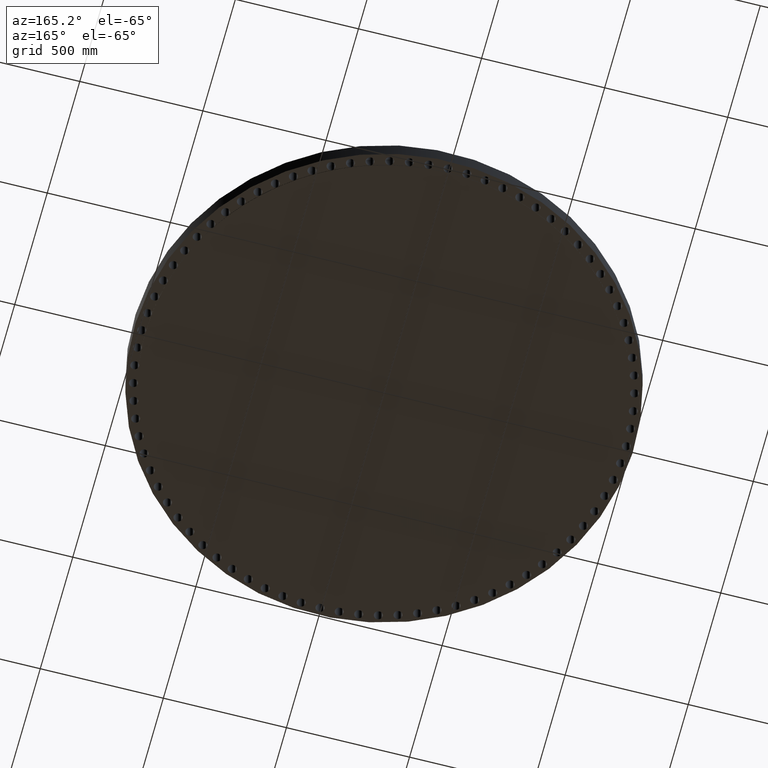
[diagram: clean part render]
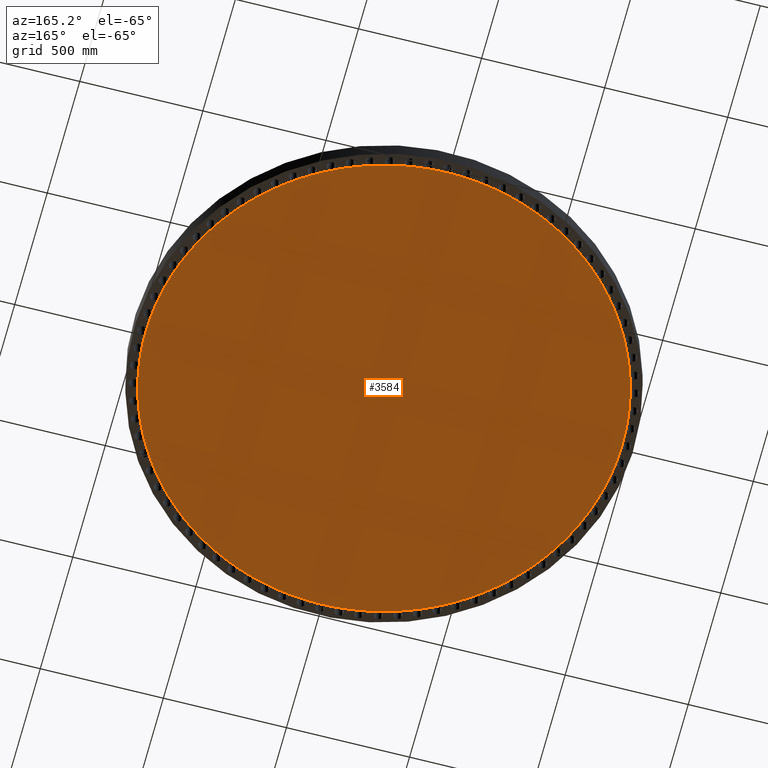
[diagram: same view with one face highlighted and labeled with its STEP entity id]
A machine part, auxiliary view. The second image highlights one B-rep face of the part: STEP entity #3584.
In plain terms, the highlighted planar face has unit normal (0, 0, -1).
Its self-contained STEP definition (entity closure, byte-faithful):
#91=AXIS2_PLACEMENT_3D('Circle Axis2P3D',#89,#90,$) ;
#188=AXIS2_PLACEMENT_3D('Circle Axis2P3D',#186,#187,$) ;
#230=AXIS2_PLACEMENT_3D('Circle Axis2P3D',#228,#229,$) ;
#258=AXIS2_PLACEMENT_3D('Circle Axis2P3D',#256,#257,$) ;
#300=AXIS2_PLACEMENT_3D('Circle Axis2P3D',#298,#299,$) ;
#319=AXIS2_PLACEMENT_3D('Circle Axis2P3D',#317,#318,$) ;
#354=AXIS2_PLACEMENT_3D('Circle Axis2P3D',#352,#353,$) ;
#389=AXIS2_PLACEMENT_3D('Circle Axis2P3D',#387,#388,$) ;
#433=AXIS2_PLACEMENT_3D('Circle Axis2P3D',#431,#432,$) ;
#468=AXIS2_PLACEMENT_3D('Circle Axis2P3D',#466,#467,$) ;
#503=AXIS2_PLACEMENT_3D('Circle Axis2P3D',#501,#502,$) ;
#529=AXIS2_PLACEMENT_3D('Circle Axis2P3D',#527,#528,$) ;
#573=AXIS2_PLACEMENT_3D('Circle Axis2P3D',#571,#572,$) ;
#599=AXIS2_PLACEMENT_3D('Circle Axis2P3D',#597,#598,$) ;
#650=AXIS2_PLACEMENT_3D('Circle Axis2P3D',#648,#649,$) ;
#669=AXIS2_PLACEMENT_3D('Circle Axis2P3D',#667,#668,$) ;
#711=AXIS2_PLACEMENT_3D('Circle Axis2P3D',#709,#710,$) ;
#739=AXIS2_PLACEMENT_3D('Circle Axis2P3D',#737,#738,$) ;
#781=AXIS2_PLACEMENT_3D('Circle Axis2P3D',#779,#780,$) ;
#800=AXIS2_PLACEMENT_3D('Circle Axis2P3D',#798,#799,$) ;
#835=AXIS2_PLACEMENT_3D('Circle Axis2P3D',#833,#834,$) ;
#870=AXIS2_PLACEMENT_3D('Circle Axis2P3D',#868,#869,$) ;
#905=AXIS2_PLACEMENT_3D('Circle Axis2P3D',#903,#904,$) ;
#940=AXIS2_PLACEMENT_3D('Circle Axis2P3D',#938,#939,$) ;
#975=AXIS2_PLACEMENT_3D('Circle Axis2P3D',#973,#974,$) ;
#1010=AXIS2_PLACEMENT_3D('Circle Axis2P3D',#1008,#1009,$) ;
#1045=AXIS2_PLACEMENT_3D('Circle Axis2P3D',#1043,#1044,$) ;
#1080=AXIS2_PLACEMENT_3D('Circle Axis2P3D',#1078,#1079,$) ;
#1124=AXIS2_PLACEMENT_3D('Circle Axis2P3D',#1122,#1123,$) ;
#1159=AXIS2_PLACEMENT_3D('Circle Axis2P3D',#1157,#1158,$) ;
#1194=AXIS2_PLACEMENT_3D('Circle Axis2P3D',#1192,#1193,$) ;
#1229=AXIS2_PLACEMENT_3D('Circle Axis2P3D',#1227,#1228,$) ;
#1264=AXIS2_PLACEMENT_3D('Circle Axis2P3D',#1262,#1263,$) ;
#1299=AXIS2_PLACEMENT_3D('Circle Axis2P3D',#1297,#1298,$) ;
#1334=AXIS2_PLACEMENT_3D('Circle Axis2P3D',#1332,#1333,$) ;
#1369=AXIS2_PLACEMENT_3D('Circle Axis2P3D',#1367,#1368,$) ;
#1404=AXIS2_PLACEMENT_3D('Circle Axis2P3D',#1402,#1403,$) ;
#1439=AXIS2_PLACEMENT_3D('Circle Axis2P3D',#1437,#1438,$) ;
#1474=AXIS2_PLACEMENT_3D('Circle Axis2P3D',#1472,#1473,$) ;
#1509=AXIS2_PLACEMENT_3D('Circle Axis2P3D',#1507,#1508,$) ;
#1544=AXIS2_PLACEMENT_3D('Circle Axis2P3D',#1542,#1543,$) ;
#1579=AXIS2_PLACEMENT_3D('Circle Axis2P3D',#1577,#1578,$) ;
#1614=AXIS2_PLACEMENT_3D('Circle Axis2P3D',#1612,#1613,$) ;
#1649=AXIS2_PLACEMENT_3D('Circle Axis2P3D',#1647,#1648,$) ;
#1684=AXIS2_PLACEMENT_3D('Circle Axis2P3D',#1682,#1683,$) ;
#1710=AXIS2_PLACEMENT_3D('Circle Axis2P3D',#1708,#1709,$) ;
#1745=AXIS2_PLACEMENT_3D('Circle Axis2P3D',#1743,#1744,$) ;
#1780=AXIS2_PLACEMENT_3D('Circle Axis2P3D',#1778,#1779,$) ;
#1815=AXIS2_PLACEMENT_3D('Circle Axis2P3D',#1813,#1814,$) ;
#1850=AXIS2_PLACEMENT_3D('Circle Axis2P3D',#1848,#1849,$) ;
#1894=AXIS2_PLACEMENT_3D('Circle Axis2P3D',#1892,#1893,$) ;
#1936=AXIS2_PLACEMENT_3D('Circle Axis2P3D',#1934,#1935,$) ;
#1955=AXIS2_PLACEMENT_3D('Circle Axis2P3D',#1953,#1954,$) ;
#1990=AXIS2_PLACEMENT_3D('Circle Axis2P3D',#1988,#1989,$) ;
#2025=AXIS2_PLACEMENT_3D('Circle Axis2P3D',#2023,#2024,$) ;
#2076=AXIS2_PLACEMENT_3D('Circle Axis2P3D',#2074,#2075,$) ;
#2111=AXIS2_PLACEMENT_3D('Circle Axis2P3D',#2109,#2110,$) ;
#2130=AXIS2_PLACEMENT_3D('Circle Axis2P3D',#2128,#2129,$) ;
#2179=AXIS2_PLACEMENT_3D('Circle Axis2P3D',#2177,#2178,$) ;
#2191=AXIS2_PLACEMENT_3D('Circle Axis2P3D',#2189,#2190,$) ;
#2242=AXIS2_PLACEMENT_3D('Circle Axis2P3D',#2240,#2241,$) ;
#2277=AXIS2_PLACEMENT_3D('Circle Axis2P3D',#2275,#2276,$) ;
#2312=AXIS2_PLACEMENT_3D('Circle Axis2P3D',#2310,#2311,$) ;
#2347=AXIS2_PLACEMENT_3D('Circle Axis2P3D',#2345,#2346,$) ;
#2382=AXIS2_PLACEMENT_3D('Circle Axis2P3D',#2380,#2381,$) ;
#2417=AXIS2_PLACEMENT_3D('Circle Axis2P3D',#2415,#2416,$) ;
#2459=AXIS2_PLACEMENT_3D('Circle Axis2P3D',#2457,#2458,$) ;
#2494=AXIS2_PLACEMENT_3D('Circle Axis2P3D',#2492,#2493,$) ;
#2529=AXIS2_PLACEMENT_3D('Circle Axis2P3D',#2527,#2528,$) ;
#2564=AXIS2_PLACEMENT_3D('Circle Axis2P3D',#2562,#2563,$) ;
#2599=AXIS2_PLACEMENT_3D('Circle Axis2P3D',#2597,#2598,$) ;
#2634=AXIS2_PLACEMENT_3D('Circle Axis2P3D',#2632,#2633,$) ;
#2662=AXIS2_PLACEMENT_3D('Circle Axis2P3D',#2660,#2661,$) ;
#2697=AXIS2_PLACEMENT_3D('Circle Axis2P3D',#2695,#2696,$) ;
#2739=AXIS2_PLACEMENT_3D('Circle Axis2P3D',#2737,#2738,$) ;
#2767=AXIS2_PLACEMENT_3D('Circle Axis2P3D',#2765,#2766,$) ;
#2809=AXIS2_PLACEMENT_3D('Circle Axis2P3D',#2807,#2808,$) ;
#2837=AXIS2_PLACEMENT_3D('Circle Axis2P3D',#2835,#2836,$) ;
#2872=AXIS2_PLACEMENT_3D('Circle Axis2P3D',#2870,#2871,$) ;
#2891=AXIS2_PLACEMENT_3D('Circle Axis2P3D',#2889,#2890,$) ;
#2926=AXIS2_PLACEMENT_3D('Circle Axis2P3D',#2924,#2925,$) ;
#2968=AXIS2_PLACEMENT_3D('Circle Axis2P3D',#2966,#2967,$) ;
#2987=AXIS2_PLACEMENT_3D('Circle Axis2P3D',#2985,#2986,$) ;
#3023=AXIS2_PLACEMENT_3D('Plane Axis2P3D',#3020,#3021,#3022) ;
#3027=AXIS2_PLACEMENT_3D('Circle Axis2P3D',#3025,#3026,$) ;
#3032=AXIS2_PLACEMENT_3D('Circle Axis2P3D',#3030,#3031,$) ;
#3037=AXIS2_PLACEMENT_3D('Circle Axis2P3D',#3035,#3036,$) ;
#3042=AXIS2_PLACEMENT_3D('Circle Axis2P3D',#3040,#3041,$) ;
#3047=AXIS2_PLACEMENT_3D('Circle Axis2P3D',#3045,#3046,$) ;
#3052=AXIS2_PLACEMENT_3D('Circle Axis2P3D',#3050,#3051,$) ;
#3057=AXIS2_PLACEMENT_3D('Circle Axis2P3D',#3055,#3056,$) ;
#3062=AXIS2_PLACEMENT_3D('Circle Axis2P3D',#3060,#3061,$) ;
#3067=AXIS2_PLACEMENT_3D('Circle Axis2P3D',#3065,#3066,$) ;
#3072=AXIS2_PLACEMENT_3D('Circle Axis2P3D',#3070,#3071,$) ;
#3077=AXIS2_PLACEMENT_3D('Circle Axis2P3D',#3075,#3076,$) ;
#3082=AXIS2_PLACEMENT_3D('Circle Axis2P3D',#3080,#3081,$) ;
#3087=AXIS2_PLACEMENT_3D('Circle Axis2P3D',#3085,#3086,$) ;
#3092=AXIS2_PLACEMENT_3D('Circle Axis2P3D',#3090,#3091,$) ;
#3097=AXIS2_PLACEMENT_3D('Circle Axis2P3D',#3095,#3096,$) ;
#3102=AXIS2_PLACEMENT_3D('Circle Axis2P3D',#3100,#3101,$) ;
#3107=AXIS2_PLACEMENT_3D('Circle Axis2P3D',#3105,#3106,$) ;
#3112=AXIS2_PLACEMENT_3D('Circle Axis2P3D',#3110,#3111,$) ;
#3117=AXIS2_PLACEMENT_3D('Circle Axis2P3D',#3115,#3116,$) ;
#3122=AXIS2_PLACEMENT_3D('Circle Axis2P3D',#3120,#3121,$) ;
#3127=AXIS2_PLACEMENT_3D('Circle Axis2P3D',#3125,#3126,$) ;
#3132=AXIS2_PLACEMENT_3D('Circle Axis2P3D',#3130,#3131,$) ;
#3137=AXIS2_PLACEMENT_3D('Circle Axis2P3D',#3135,#3136,$) ;
#3142=AXIS2_PLACEMENT_3D('Circle Axis2P3D',#3140,#3141,$) ;
#3147=AXIS2_PLACEMENT_3D('Circle Axis2P3D',#3145,#3146,$) ;
#3152=AXIS2_PLACEMENT_3D('Circle Axis2P3D',#3150,#3151,$) ;
#3157=AXIS2_PLACEMENT_3D('Circle Axis2P3D',#3155,#3156,$) ;
#3162=AXIS2_PLACEMENT_3D('Circle Axis2P3D',#3160,#3161,$) ;
#3167=AXIS2_PLACEMENT_3D('Circle Axis2P3D',#3165,#3166,$) ;
#3172=AXIS2_PLACEMENT_3D('Circle Axis2P3D',#3170,#3171,$) ;
#3177=AXIS2_PLACEMENT_3D('Circle Axis2P3D',#3175,#3176,$) ;
#3182=AXIS2_PLACEMENT_3D('Circle Axis2P3D',#3180,#3181,$) ;
#3187=AXIS2_PLACEMENT_3D('Circle Axis2P3D',#3185,#3186,$) ;
#3192=AXIS2_PLACEMENT_3D('Circle Axis2P3D',#3190,#3191,$) ;
#3197=AXIS2_PLACEMENT_3D('Circle Axis2P3D',#3195,#3196,$) ;
#3202=AXIS2_PLACEMENT_3D('Circle Axis2P3D',#3200,#3201,$) ;
#3207=AXIS2_PLACEMENT_3D('Circle Axis2P3D',#3205,#3206,$) ;
#3212=AXIS2_PLACEMENT_3D('Circle Axis2P3D',#3210,#3211,$) ;
#3217=AXIS2_PLACEMENT_3D('Circle Axis2P3D',#3215,#3216,$) ;
#3222=AXIS2_PLACEMENT_3D('Circle Axis2P3D',#3220,#3221,$) ;
#3227=AXIS2_PLACEMENT_3D('Circle Axis2P3D',#3225,#3226,$) ;
#3232=AXIS2_PLACEMENT_3D('Circle Axis2P3D',#3230,#3231,$) ;
#3237=AXIS2_PLACEMENT_3D('Circle Axis2P3D',#3235,#3236,$) ;
#3242=AXIS2_PLACEMENT_3D('Circle Axis2P3D',#3240,#3241,$) ;
#3247=AXIS2_PLACEMENT_3D('Circle Axis2P3D',#3245,#3246,$) ;
#3252=AXIS2_PLACEMENT_3D('Circle Axis2P3D',#3250,#3251,$) ;
#3257=AXIS2_PLACEMENT_3D('Circle Axis2P3D',#3255,#3256,$) ;
#3262=AXIS2_PLACEMENT_3D('Circle Axis2P3D',#3260,#3261,$) ;
#3267=AXIS2_PLACEMENT_3D('Circle Axis2P3D',#3265,#3266,$) ;
#3272=AXIS2_PLACEMENT_3D('Circle Axis2P3D',#3270,#3271,$) ;
#3277=AXIS2_PLACEMENT_3D('Circle Axis2P3D',#3275,#3276,$) ;
#3282=AXIS2_PLACEMENT_3D('Circle Axis2P3D',#3280,#3281,$) ;
#3287=AXIS2_PLACEMENT_3D('Circle Axis2P3D',#3285,#3286,$) ;
#3292=AXIS2_PLACEMENT_3D('Circle Axis2P3D',#3290,#3291,$) ;
#3297=AXIS2_PLACEMENT_3D('Circle Axis2P3D',#3295,#3296,$) ;
#3302=AXIS2_PLACEMENT_3D('Circle Axis2P3D',#3300,#3301,$) ;
#3307=AXIS2_PLACEMENT_3D('Circle Axis2P3D',#3305,#3306,$) ;
#3312=AXIS2_PLACEMENT_3D('Circle Axis2P3D',#3310,#3311,$) ;
#3317=AXIS2_PLACEMENT_3D('Circle Axis2P3D',#3315,#3316,$) ;
#3322=AXIS2_PLACEMENT_3D('Circle Axis2P3D',#3320,#3321,$) ;
#3327=AXIS2_PLACEMENT_3D('Circle Axis2P3D',#3325,#3326,$) ;
#3332=AXIS2_PLACEMENT_3D('Circle Axis2P3D',#3330,#3331,$) ;
#3337=AXIS2_PLACEMENT_3D('Circle Axis2P3D',#3335,#3336,$) ;
#3342=AXIS2_PLACEMENT_3D('Circle Axis2P3D',#3340,#3341,$) ;
#3347=AXIS2_PLACEMENT_3D('Circle Axis2P3D',#3345,#3346,$) ;
#3352=AXIS2_PLACEMENT_3D('Circle Axis2P3D',#3350,#3351,$) ;
#3357=AXIS2_PLACEMENT_3D('Circle Axis2P3D',#3355,#3356,$) ;
#3362=AXIS2_PLACEMENT_3D('Circle Axis2P3D',#3360,#3361,$) ;
#3367=AXIS2_PLACEMENT_3D('Circle Axis2P3D',#3365,#3366,$) ;
#3372=AXIS2_PLACEMENT_3D('Circle Axis2P3D',#3370,#3371,$) ;
#3377=AXIS2_PLACEMENT_3D('Circle Axis2P3D',#3375,#3376,$) ;
#3382=AXIS2_PLACEMENT_3D('Circle Axis2P3D',#3380,#3381,$) ;
#3387=AXIS2_PLACEMENT_3D('Circle Axis2P3D',#3385,#3386,$) ;
#3392=AXIS2_PLACEMENT_3D('Circle Axis2P3D',#3390,#3391,$) ;
#3397=AXIS2_PLACEMENT_3D('Circle Axis2P3D',#3395,#3396,$) ;
#3402=AXIS2_PLACEMENT_3D('Circle Axis2P3D',#3400,#3401,$) ;
#3407=AXIS2_PLACEMENT_3D('Circle Axis2P3D',#3405,#3406,$) ;
#3412=AXIS2_PLACEMENT_3D('Circle Axis2P3D',#3410,#3411,$) ;
#3417=AXIS2_PLACEMENT_3D('Circle Axis2P3D',#3415,#3416,$) ;
#86=CARTESIAN_POINT('Vertex',(38.0649112905,-0.0821794370423,-0.0625000000002)) ;
#89=CARTESIAN_POINT('Axis2P3D Location',(38.7500000002,0.,-0.0625000000002)) ;
#93=CARTESIAN_POINT('Vertex',(38.0649112905,0.0821794370423,-0.0625000000002)) ;
#186=CARTESIAN_POINT('Axis2P3D Location',(0.,0.,-0.0625000000002)) ;
#190=CARTESIAN_POINT('Vertex',(37.6091247637,5.87349636273,-0.0625000000002)) ;
#192=CARTESIAN_POINT('Vertex',(37.9411221482,3.06846462408,-0.0625000000002)) ;
#228=CARTESIAN_POINT('Axis2P3D Location',(0.,0.,-0.0625000000002)) ;
#232=CARTESIAN_POINT('Vertex',(37.9540175968,2.90461241355,-0.0625000000002)) ;
#253=CARTESIAN_POINT('Vertex',(37.5834133711,6.03583170633,-0.0625000000002)) ;
#256=CARTESIAN_POINT('Axis2P3D Location',(0.,0.,-0.0625000000002)) ;
#260=CARTESIAN_POINT('Vertex',(37.03235917,8.80616825369,-0.0625000000002)) ;
#295=CARTESIAN_POINT('Vertex',(36.9939903529,8.965985879,-0.0625000000002)) ;
#298=CARTESIAN_POINT('Axis2P3D Location',(0.,0.,-0.0625000000002)) ;
#302=CARTESIAN_POINT('Vertex',(36.2272767676,11.684547189,-0.0625000000003)) ;
#317=CARTESIAN_POINT('Axis2P3D Location',(0.,0.,-0.0625000000002)) ;
#321=CARTESIAN_POINT('Vertex',(35.1988411572,14.4908870054,-0.0625000000002)) ;
#323=CARTESIAN_POINT('Vertex',(36.1764870824,11.8408617672,-0.0625000000002)) ;
#352=CARTESIAN_POINT('Axis2P3D Location',(0.,0.,-0.0625000000002)) ;
#356=CARTESIAN_POINT('Vertex',(33.9533929862,17.2078856847,-0.0625000000002)) ;
#358=CARTESIAN_POINT('Vertex',(35.1359437391,14.6427348052,-0.0625000000002)) ;
#387=CARTESIAN_POINT('Axis2P3D Location',(0.,0.,-0.0625000000002)) ;
#391=CARTESIAN_POINT('Vertex',(32.4986108567,19.8187920266,-0.0625000000002)) ;
#393=CARTESIAN_POINT('Vertex',(33.8787756188,17.3543305139,-0.0625000000002)) ;
#428=CARTESIAN_POINT('Vertex',(32.4127335809,19.958931004,-0.0625000000002)) ;
#431=CARTESIAN_POINT('Axis2P3D Location',(0.,0.,-0.0625000000002)) ;
#435=CARTESIAN_POINT('Vertex',(30.8434639845,22.3075089252,-0.0625000000002)) ;
#463=CARTESIAN_POINT('Vertex',(30.7468562622,22.4404780475,-0.0625000000002)) ;
#466=CARTESIAN_POINT('Axis2P3D Location',(0.,0.,-0.0625000000002)) ;
#470=CARTESIAN_POINT('Vertex',(28.9981569003,24.6586926133,-0.0625000000003)) ;
#498=CARTESIAN_POINT('Vertex',(28.8914143503,24.7836720816,-0.0625000000003)) ;
#501=CARTESIAN_POINT('Axis2P3D Location',(0.,0.,-0.0625000000002)) ;
#505=CARTESIAN_POINT('Vertex',(26.974066536,26.8578472616,-0.0625000000002)) ;
#527=CARTESIAN_POINT('Axis2P3D Location',(0.,0.,-0.0625000000002)) ;
#531=CARTESIAN_POINT('Vertex',(22.4404780475,30.7468562622,-0.0625000000002)) ;
#533=CARTESIAN_POINT('Vertex',(24.6586926133,28.9981569003,-0.0625000000002)) ;
#568=CARTESIAN_POINT('Vertex',(22.3075089252,30.8434639845,-0.0625000000002)) ;
#571=CARTESIAN_POINT('Axis2P3D Location',(0.,0.,-0.0625000000002)) ;
#575=CARTESIAN_POINT('Vertex',(19.958931004,32.4127335809,-0.0625000000002)) ;
#597=CARTESIAN_POINT('Axis2P3D Location',(0.,0.,-0.0625000000002)) ;
#601=CARTESIAN_POINT('Vertex',(18.249333127,33.4051802185,-0.0625000000002)) ;
#603=CARTESIAN_POINT('Vertex',(19.8187920266,32.4986108567,-0.0625000000002)) ;
#645=CARTESIAN_POINT('Vertex',(26.8578472616,26.974066536,-0.0625000000002)) ;
#648=CARTESIAN_POINT('Axis2P3D Location',(0.,0.,-0.0625000000002)) ;
#652=CARTESIAN_POINT('Vertex',(24.7836720816,28.8914143503,-0.0625000000002)) ;
#667=CARTESIAN_POINT('Axis2P3D Location',(0.,0.,-0.0625000000002)) ;
#671=CARTESIAN_POINT('Vertex',(14.6427348052,35.1359437391,-0.0625000000002)) ;
#673=CARTESIAN_POINT('Vertex',(17.2078856847,33.9533929862,-0.0625000000002)) ;
#709=CARTESIAN_POINT('Axis2P3D Location',(0.,0.,-0.0625000000002)) ;
#713=CARTESIAN_POINT('Vertex',(17.3543305139,33.8787756188,-0.0625000000002)) ;
#734=CARTESIAN_POINT('Vertex',(14.4908870054,35.1988411572,-0.0625000000002)) ;
#737=CARTESIAN_POINT('Axis2P3D Location',(0.,0.,-0.0625000000002)) ;
#741=CARTESIAN_POINT('Vertex',(11.8408617672,36.1764870824,-0.0625000000003)) ;
#776=CARTESIAN_POINT('Vertex',(11.684547189,36.2272767676,-0.0625000000003)) ;
#779=CARTESIAN_POINT('Axis2P3D Location',(0.,0.,-0.0625000000002)) ;
#783=CARTESIAN_POINT('Vertex',(8.965985879,36.9939903529,-0.0625000000002)) ;
#798=CARTESIAN_POINT('Axis2P3D Location',(0.,0.,-0.0625000000002)) ;
#802=CARTESIAN_POINT('Vertex',(6.03583170633,37.5834133711,-0.0625000000002)) ;
#804=CARTESIAN_POINT('Vertex',(8.80616825369,37.03235917,-0.0625000000002)) ;
#833=CARTESIAN_POINT('Axis2P3D Location',(0.,0.,-0.0625000000002)) ;
#837=CARTESIAN_POINT('Vertex',(3.06846462408,37.9411221482,-0.0625000000002)) ;
#839=CARTESIAN_POINT('Vertex',(5.87349636273,37.6091247637,-0.0625000000003)) ;
#868=CARTESIAN_POINT('Axis2P3D Location',(0.,0.,-0.0625000000002)) ;
#872=CARTESIAN_POINT('Vertex',(0.0821794370422,38.0649112905,-0.0625000000002)) ;
#874=CARTESIAN_POINT('Vertex',(2.90461241355,37.9540175968,-0.0625000000002)) ;
#903=CARTESIAN_POINT('Axis2P3D Location',(0.,0.,-0.0625000000002)) ;
#907=CARTESIAN_POINT('Vertex',(-2.90461241355,37.9540175968,-0.0625000000002)) ;
#909=CARTESIAN_POINT('Vertex',(-0.0821794370423,38.0649112905,-0.0625000000002)) ;
#938=CARTESIAN_POINT('Axis2P3D Location',(0.,0.,-0.0625000000002)) ;
#942=CARTESIAN_POINT('Vertex',(-5.87349636273,37.6091247637,-0.0625000000002)) ;
#944=CARTESIAN_POINT('Vertex',(-3.06846462408,37.9411221482,-0.0625000000002)) ;
#973=CARTESIAN_POINT('Axis2P3D Location',(0.,0.,-0.0625000000002)) ;
#977=CARTESIAN_POINT('Vertex',(-8.80616825369,37.03235917,-0.0625000000002)) ;
#979=CARTESIAN_POINT('Vertex',(-6.03583170633,37.5834133711,-0.0625000000002)) ;
#1008=CARTESIAN_POINT('Axis2P3D Location',(0.,0.,-0.0625000000002)) ;
#1012=CARTESIAN_POINT('Vertex',(-11.684547189,36.2272767676,-0.0625000000003)) ;
#1014=CARTESIAN_POINT('Vertex',(-8.965985879,36.9939903529,-0.0625000000002)) ;
#1043=CARTESIAN_POINT('Axis2P3D Location',(0.,0.,-0.0625000000002)) ;
#1047=CARTESIAN_POINT('Vertex',(-14.4908870054,35.1988411572,-0.0625000000002)) ;
#1049=CARTESIAN_POINT('Vertex',(-11.8408617672,36.1764870824,-0.0625000000002)) ;
#1078=CARTESIAN_POINT('Axis2P3D Location',(0.,0.,-0.0625000000002)) ;
#1082=CARTESIAN_POINT('Vertex',(-17.2078856847,33.9533929862,-0.0625000000002)) ;
#1084=CARTESIAN_POINT('Vertex',(-14.6427348052,35.1359437391,-0.0625000000002)) ;
#1119=CARTESIAN_POINT('Vertex',(-17.3543305139,33.8787756188,-0.0625000000002)) ;
#1122=CARTESIAN_POINT('Axis2P3D Location',(0.,0.,-0.0625000000002)) ;
#1126=CARTESIAN_POINT('Vertex',(-19.8187920266,32.4986108567,-0.0625000000002)) ;
#1154=CARTESIAN_POINT('Vertex',(-19.958931004,32.4127335809,-0.0625000000002)) ;
#1157=CARTESIAN_POINT('Axis2P3D Location',(0.,0.,-0.0625000000002)) ;
#1161=CARTESIAN_POINT('Vertex',(-22.3075089252,30.8434639845,-0.0625000000002)) ;
#1189=CARTESIAN_POINT('Vertex',(-22.4404780475,30.7468562622,-0.0625000000002)) ;
#1192=CARTESIAN_POINT('Axis2P3D Location',(0.,0.,-0.0625000000002)) ;
#1196=CARTESIAN_POINT('Vertex',(-24.6586926133,28.9981569003,-0.0625000000002)) ;
#1224=CARTESIAN_POINT('Vertex',(-24.7836720816,28.8914143503,-0.0625000000002)) ;
#1227=CARTESIAN_POINT('Axis2P3D Location',(0.,0.,-0.0625000000002)) ;
#1231=CARTESIAN_POINT('Vertex',(-26.8578472616,26.974066536,-0.0625000000002)) ;
#1259=CARTESIAN_POINT('Vertex',(-26.974066536,26.8578472616,-0.0625000000002)) ;
#1262=CARTESIAN_POINT('Axis2P3D Location',(0.,0.,-0.0625000000002)) ;
#1266=CARTESIAN_POINT('Vertex',(-28.8914143503,24.7836720816,-0.0625000000002)) ;
#1294=CARTESIAN_POINT('Vertex',(-28.9981569003,24.6586926133,-0.0625000000002)) ;
#1297=CARTESIAN_POINT('Axis2P3D Location',(0.,0.,-0.0625000000002)) ;
#1301=CARTESIAN_POINT('Vertex',(-30.7468562622,22.4404780475,-0.0625000000003)) ;
#1329=CARTESIAN_POINT('Vertex',(-30.8434639845,22.3075089252,-0.0625000000002)) ;
#1332=CARTESIAN_POINT('Axis2P3D Location',(0.,0.,-0.0625000000002)) ;
#1336=CARTESIAN_POINT('Vertex',(-32.4127335809,19.958931004,-0.0625000000002)) ;
#1364=CARTESIAN_POINT('Vertex',(-32.4986108567,19.8187920266,-0.0625000000002)) ;
#1367=CARTESIAN_POINT('Axis2P3D Location',(0.,0.,-0.0625000000002)) ;
#1371=CARTESIAN_POINT('Vertex',(-33.8787756188,17.3543305139,-0.0625000000002)) ;
#1399=CARTESIAN_POINT('Vertex',(-33.9533929862,17.2078856847,-0.0625000000002)) ;
#1402=CARTESIAN_POINT('Axis2P3D Location',(0.,0.,-0.0625000000002)) ;
#1406=CARTESIAN_POINT('Vertex',(-35.1359437391,14.6427348052,-0.0625000000002)) ;
#1434=CARTESIAN_POINT('Vertex',(-35.1988411572,14.4908870054,-0.0625000000002)) ;
#1437=CARTESIAN_POINT('Axis2P3D Location',(0.,0.,-0.0625000000002)) ;
#1441=CARTESIAN_POINT('Vertex',(-36.1764870824,11.8408617672,-0.0625000000002)) ;
#1469=CARTESIAN_POINT('Vertex',(-36.2272767676,11.684547189,-0.0625000000002)) ;
#1472=CARTESIAN_POINT('Axis2P3D Location',(0.,0.,-0.0625000000002)) ;
#1476=CARTESIAN_POINT('Vertex',(-36.9939903529,8.965985879,-0.0625000000002)) ;
#1504=CARTESIAN_POINT('Vertex',(-37.03235917,8.80616825369,-0.0625000000002)) ;
#1507=CARTESIAN_POINT('Axis2P3D Location',(0.,0.,-0.0625000000002)) ;
#1511=CARTESIAN_POINT('Vertex',(-37.5834133711,6.03583170633,-0.0625000000002)) ;
#1539=CARTESIAN_POINT('Vertex',(-37.6091247637,5.87349636273,-0.0625000000002)) ;
#1542=CARTESIAN_POINT('Axis2P3D Location',(0.,0.,-0.0625000000002)) ;
#1546=CARTESIAN_POINT('Vertex',(-37.9411221482,3.06846462408,-0.0625000000002)) ;
#1574=CARTESIAN_POINT('Vertex',(-37.9540175968,2.90461241355,-0.0625000000002)) ;
#1577=CARTESIAN_POINT('Axis2P3D Location',(0.,0.,-0.0625000000002)) ;
#1581=CARTESIAN_POINT('Vertex',(-38.0649112905,0.0821794370423,-0.0625000000002)) ;
#1609=CARTESIAN_POINT('Vertex',(-38.0649112905,-0.0821794370423,-0.0625000000002)) ;
#1612=CARTESIAN_POINT('Axis2P3D Location',(0.,0.,-0.0625000000002)) ;
#1616=CARTESIAN_POINT('Vertex',(-37.9540175968,-2.90461241355,-0.0625000000002)) ;
#1644=CARTESIAN_POINT('Vertex',(-37.5834133711,-6.03583170633,-0.0625000000002)) ;
#1647=CARTESIAN_POINT('Axis2P3D Location',(0.,0.,-0.0625000000002)) ;
#1651=CARTESIAN_POINT('Vertex',(-37.03235917,-8.80616825369,-0.0625000000002)) ;
#1679=CARTESIAN_POINT('Vertex',(-36.9939903529,-8.965985879,-0.0625000000002)) ;
#1682=CARTESIAN_POINT('Axis2P3D Location',(0.,0.,-0.0625000000002)) ;
#1686=CARTESIAN_POINT('Vertex',(-36.2272767676,-11.684547189,-0.0625000000002)) ;
#1708=CARTESIAN_POINT('Axis2P3D Location',(0.,0.,-0.0625000000002)) ;
#1712=CARTESIAN_POINT('Vertex',(-35.1988411572,-14.4908870054,-0.0625000000003)) ;
#1714=CARTESIAN_POINT('Vertex',(-36.1764870824,-11.8408617672,-0.0625000000002)) ;
#1743=CARTESIAN_POINT('Axis2P3D Location',(0.,0.,-0.0625000000002)) ;
#1747=CARTESIAN_POINT('Vertex',(-33.9533929862,-17.2078856847,-0.0625000000003)) ;
#1749=CARTESIAN_POINT('Vertex',(-35.1359437391,-14.6427348052,-0.0625000000003)) ;
#1778=CARTESIAN_POINT('Axis2P3D Location',(0.,0.,-0.0625000000002)) ;
#1782=CARTESIAN_POINT('Vertex',(-32.4986108567,-19.8187920266,-0.0625000000002)) ;
#1784=CARTESIAN_POINT('Vertex',(-33.8787756188,-17.3543305139,-0.0625000000002)) ;
#1813=CARTESIAN_POINT('Axis2P3D Location',(0.,0.,-0.0625000000002)) ;
#1817=CARTESIAN_POINT('Vertex',(-30.8434639845,-22.3075089252,-0.0625000000002)) ;
#1819=CARTESIAN_POINT('Vertex',(-32.4127335809,-19.958931004,-0.0625000000002)) ;
#1848=CARTESIAN_POINT('Axis2P3D Location',(0.,0.,-0.0625000000002)) ;
#1852=CARTESIAN_POINT('Vertex',(-28.9981569003,-24.6586926133,-0.0625000000002)) ;
#1854=CARTESIAN_POINT('Vertex',(-30.7468562622,-22.4404780475,-0.0625000000002)) ;
#1889=CARTESIAN_POINT('Vertex',(-28.8914143503,-24.7836720816,-0.0625000000002)) ;
#1892=CARTESIAN_POINT('Axis2P3D Location',(0.,0.,-0.0625000000002)) ;
#1896=CARTESIAN_POINT('Vertex',(-26.974066536,-26.8578472616,-0.0625000000002)) ;
#1931=CARTESIAN_POINT('Vertex',(-24.6586926133,-28.9981569003,-0.0625000000002)) ;
#1934=CARTESIAN_POINT('Axis2P3D Location',(0.,0.,-0.0625000000002)) ;
#1938=CARTESIAN_POINT('Vertex',(-22.4404780475,-30.7468562622,-0.0625000000002)) ;
#1953=CARTESIAN_POINT('Axis2P3D Location',(0.,0.,-0.0625000000002)) ;
#1957=CARTESIAN_POINT('Vertex',(-19.958931004,-32.4127335809,-0.0625000000002)) ;
#1959=CARTESIAN_POINT('Vertex',(-22.3075089252,-30.8434639845,-0.0625000000002)) ;
#1988=CARTESIAN_POINT('Axis2P3D Location',(0.,0.,-0.0625000000002)) ;
#1992=CARTESIAN_POINT('Vertex',(-18.249333127,-33.4051802185,-0.0625000000002)) ;
#1994=CARTESIAN_POINT('Vertex',(-19.8187920266,-32.4986108567,-0.0625000000002)) ;
#2023=CARTESIAN_POINT('Axis2P3D Location',(0.,0.,-0.0625000000002)) ;
#2027=CARTESIAN_POINT('Vertex',(-24.7836720816,-28.8914143503,-0.0625000000003)) ;
#2029=CARTESIAN_POINT('Vertex',(-26.8578472616,-26.974066536,-0.0625000000002)) ;
#2071=CARTESIAN_POINT('Vertex',(-37.9411221482,-3.06846462408,-0.0625000000002)) ;
#2074=CARTESIAN_POINT('Axis2P3D Location',(0.,0.,-0.0625000000002)) ;
#2078=CARTESIAN_POINT('Vertex',(-37.6091247637,-5.87349636273,-0.0625000000002)) ;
#2106=CARTESIAN_POINT('Vertex',(37.6091247637,-5.87349636273,-0.0625000000002)) ;
#2109=CARTESIAN_POINT('Axis2P3D Location',(0.,0.,-0.0625000000002)) ;
#2113=CARTESIAN_POINT('Vertex',(37.9411221482,-3.06846462408,-0.0625000000002)) ;
#2128=CARTESIAN_POINT('Axis2P3D Location',(0.,0.,-0.0625000000002)) ;
#2132=CARTESIAN_POINT('Vertex',(37.9540175968,-2.90461241355,-0.0625000000002)) ;
#2160=CARTESIAN_POINT('Vertex',(37.5834133711,-6.03583170633,-0.0625000000002)) ;
#2174=CARTESIAN_POINT('Vertex',(37.03235917,-8.80616825369,-0.0625000000002)) ;
#2177=CARTESIAN_POINT('Axis2P3D Location',(0.,0.,-0.0625000000002)) ;
#2189=CARTESIAN_POINT('Axis2P3D Location',(0.,0.,-0.0625000000002)) ;
#2193=CARTESIAN_POINT('Vertex',(36.9939903529,-8.965985879,-0.0625000000002)) ;
#2195=CARTESIAN_POINT('Vertex',(36.2272767676,-11.684547189,-0.0625000000002)) ;
#2237=CARTESIAN_POINT('Vertex',(35.1988411572,-14.4908870054,-0.0625000000002)) ;
#2240=CARTESIAN_POINT('Axis2P3D Location',(0.,0.,-0.0625000000002)) ;
#2244=CARTESIAN_POINT('Vertex',(36.1764870824,-11.8408617672,-0.0625000000002)) ;
#2272=CARTESIAN_POINT('Vertex',(33.9533929862,-17.2078856847,-0.0625000000002)) ;
#2275=CARTESIAN_POINT('Axis2P3D Location',(0.,0.,-0.0625000000002)) ;
#2279=CARTESIAN_POINT('Vertex',(35.1359437391,-14.6427348052,-0.0625000000002)) ;
#2307=CARTESIAN_POINT('Vertex',(32.4986108567,-19.8187920266,-0.0625000000002)) ;
#2310=CARTESIAN_POINT('Axis2P3D Location',(0.,0.,-0.0625000000002)) ;
#2314=CARTESIAN_POINT('Vertex',(33.8787756188,-17.3543305139,-0.0625000000002)) ;
#2342=CARTESIAN_POINT('Vertex',(30.8434639845,-22.3075089252,-0.0625000000002)) ;
#2345=CARTESIAN_POINT('Axis2P3D Location',(0.,0.,-0.0625000000002)) ;
#2349=CARTESIAN_POINT('Vertex',(32.4127335809,-19.958931004,-0.0625000000002)) ;
#2377=CARTESIAN_POINT('Vertex',(28.9981569003,-24.6586926133,-0.0625000000002)) ;
#2380=CARTESIAN_POINT('Axis2P3D Location',(0.,0.,-0.0625000000002)) ;
#2384=CARTESIAN_POINT('Vertex',(30.7468562622,-22.4404780475,-0.0625000000002)) ;
#2412=CARTESIAN_POINT('Vertex',(26.974066536,-26.8578472616,-0.0625000000002)) ;
#2415=CARTESIAN_POINT('Axis2P3D Location',(0.,0.,-0.0625000000002)) ;
#2419=CARTESIAN_POINT('Vertex',(28.8914143503,-24.7836720816,-0.0625000000002)) ;
#2440=CARTESIAN_POINT('Vertex',(26.8578472616,-26.974066536,-0.0625000000002)) ;
#2454=CARTESIAN_POINT('Vertex',(24.7836720816,-28.8914143503,-0.0625000000002)) ;
#2457=CARTESIAN_POINT('Axis2P3D Location',(0.,0.,-0.0625000000002)) ;
#2475=CARTESIAN_POINT('Vertex',(24.6586926133,-28.9981569003,-0.0625000000002)) ;
#2489=CARTESIAN_POINT('Vertex',(22.4404780475,-30.7468562622,-0.0625000000002)) ;
#2492=CARTESIAN_POINT('Axis2P3D Location',(0.,0.,-0.0625000000002)) ;
#2510=CARTESIAN_POINT('Vertex',(22.3075089252,-30.8434639845,-0.0625000000002)) ;
#2524=CARTESIAN_POINT('Vertex',(19.958931004,-32.4127335809,-0.0625000000002)) ;
#2527=CARTESIAN_POINT('Axis2P3D Location',(0.,0.,-0.0625000000002)) ;
#2545=CARTESIAN_POINT('Vertex',(19.8187920266,-32.4986108567,-0.0625000000002)) ;
#2559=CARTESIAN_POINT('Vertex',(17.3543305139,-33.8787756188,-0.0625000000002)) ;
#2562=CARTESIAN_POINT('Axis2P3D Location',(0.,0.,-0.0625000000002)) ;
#2580=CARTESIAN_POINT('Vertex',(17.2078856847,-33.9533929862,-0.0625000000002)) ;
#2594=CARTESIAN_POINT('Vertex',(14.6427348052,-35.1359437391,-0.0625000000003)) ;
#2597=CARTESIAN_POINT('Axis2P3D Location',(0.,0.,-0.0625000000002)) ;
#2615=CARTESIAN_POINT('Vertex',(14.4908870054,-35.1988411572,-0.0625000000003)) ;
#2629=CARTESIAN_POINT('Vertex',(11.8408617672,-36.1764870824,-0.0625000000002)) ;
#2632=CARTESIAN_POINT('Axis2P3D Location',(0.,0.,-0.0625000000002)) ;
#2657=CARTESIAN_POINT('Vertex',(8.965985879,-36.9939903529,-0.0625000000002)) ;
#2660=CARTESIAN_POINT('Axis2P3D Location',(0.,0.,-0.0625000000002)) ;
#2664=CARTESIAN_POINT('Vertex',(11.684547189,-36.2272767676,-0.0625000000002)) ;
#2692=CARTESIAN_POINT('Vertex',(6.03583170633,-37.5834133711,-0.0625000000002)) ;
#2695=CARTESIAN_POINT('Axis2P3D Location',(0.,0.,-0.0625000000002)) ;
#2699=CARTESIAN_POINT('Vertex',(8.80616825369,-37.03235917,-0.0625000000002)) ;
#2720=CARTESIAN_POINT('Vertex',(5.87349636273,-37.6091247637,-0.0625000000003)) ;
#2734=CARTESIAN_POINT('Vertex',(3.06846462408,-37.9411221482,-0.0625000000002)) ;
#2737=CARTESIAN_POINT('Axis2P3D Location',(0.,0.,-0.0625000000002)) ;
#2762=CARTESIAN_POINT('Vertex',(-2.90461241355,-37.9540175968,-0.0625000000002)) ;
#2765=CARTESIAN_POINT('Axis2P3D Location',(0.,0.,-0.0625000000002)) ;
#2769=CARTESIAN_POINT('Vertex',(-0.0821794370423,-38.0649112905,-0.0625000000002)) ;
#2790=CARTESIAN_POINT('Vertex',(-3.06846462408,-37.9411221482,-0.0625000000002)) ;
#2804=CARTESIAN_POINT('Vertex',(-5.87349636273,-37.6091247637,-0.0625000000002)) ;
#2807=CARTESIAN_POINT('Axis2P3D Location',(0.,0.,-0.0625000000002)) ;
#2832=CARTESIAN_POINT('Vertex',(-8.80616825369,-37.03235917,-0.0625000000003)) ;
#2835=CARTESIAN_POINT('Axis2P3D Location',(0.,0.,-0.0625000000002)) ;
#2839=CARTESIAN_POINT('Vertex',(-6.03583170633,-37.5834133711,-0.0625000000002)) ;
#2867=CARTESIAN_POINT('Vertex',(-11.684547189,-36.2272767676,-0.0625000000002)) ;
#2870=CARTESIAN_POINT('Axis2P3D Location',(0.,0.,-0.0625000000002)) ;
#2874=CARTESIAN_POINT('Vertex',(-8.965985879,-36.9939903529,-0.0625000000003)) ;
#2889=CARTESIAN_POINT('Axis2P3D Location',(0.,0.,-0.0625000000002)) ;
#2893=CARTESIAN_POINT('Vertex',(-11.8408617672,-36.1764870824,-0.0625000000002)) ;
#2895=CARTESIAN_POINT('Vertex',(-14.4908870054,-35.1988411572,-0.0625000000002)) ;
#2924=CARTESIAN_POINT('Axis2P3D Location',(0.,0.,-0.0625000000002)) ;
#2928=CARTESIAN_POINT('Vertex',(-14.6427348052,-35.1359437391,-0.0625000000002)) ;
#2930=CARTESIAN_POINT('Vertex',(-17.2078856847,-33.9533929862,-0.0625000000002)) ;
#2966=CARTESIAN_POINT('Axis2P3D Location',(0.,0.,-0.0625000000002)) ;
#2970=CARTESIAN_POINT('Vertex',(-17.3543305139,-33.8787756188,-0.0625000000002)) ;
#2985=CARTESIAN_POINT('Axis2P3D Location',(0.,0.,-0.0625000000002)) ;
#2989=CARTESIAN_POINT('Vertex',(2.90461241355,-37.9540175968,-0.0625000000002)) ;
#2991=CARTESIAN_POINT('Vertex',(0.0821794370423,-38.0649112905,-0.0625000000002)) ;
#3020=CARTESIAN_POINT('Axis2P3D Location',(0.,0.,-0.0625000000002)) ;
#3025=CARTESIAN_POINT('Axis2P3D Location',(38.2729231982,-6.06183552033,-0.0625000000002)) ;
#3030=CARTESIAN_POINT('Axis2P3D Location',(37.6793344156,-9.04600784945,-0.0625000000002)) ;
#3035=CARTESIAN_POINT('Axis2P3D Location',(36.8534400066,-11.9744085321,-0.0625000000002)) ;
#3040=CARTESIAN_POINT('Axis2P3D Location',(35.800331885,-14.8289830042,-0.0625000000002)) ;
#3045=CARTESIAN_POINT('Axis2P3D Location',(34.5265028124,-17.592131865,-0.0625000000002)) ;
#3050=CARTESIAN_POINT('Axis2P3D Location',(33.0398063689,-20.2468193828,-0.0625000000002)) ;
#3055=CARTESIAN_POINT('Axis2P3D Location',(31.3494085322,-22.7766785264,-0.0625000000002)) ;
#3060=CARTESIAN_POINT('Axis2P3D Location',(29.4657311671,-25.1661118729,-0.0625000000002)) ;
#3065=CARTESIAN_POINT('Axis2P3D Location',(27.4003877711,-27.4003877711,-0.0625000000002)) ;
#3070=CARTESIAN_POINT('Axis2P3D Location',(25.1661118729,-29.4657311671,-0.0625000000002)) ;
#3075=CARTESIAN_POINT('Axis2P3D Location',(22.7766785264,-31.3494085322,-0.0625000000002)) ;
#3080=CARTESIAN_POINT('Axis2P3D Location',(20.2468193828,-33.0398063689,-0.0625000000002)) ;
#3085=CARTESIAN_POINT('Axis2P3D Location',(17.592131865,-34.5265028124,-0.0625000000002)) ;
#3090=CARTESIAN_POINT('Axis2P3D Location',(14.8289830042,-35.800331885,-0.0625000000002)) ;
#3095=CARTESIAN_POINT('Axis2P3D Location',(11.9744085321,-36.8534400066,-0.0625000000002)) ;
#3100=CARTESIAN_POINT('Axis2P3D Location',(9.04600784945,-37.6793344156,-0.0625000000002)) ;
#3105=CARTESIAN_POINT('Axis2P3D Location',(6.06183552033,-38.2729231982,-0.0625000000002)) ;
#3110=CARTESIAN_POINT('Axis2P3D Location',(3.04028995947,-38.6305466823,-0.0625000000002)) ;
#3115=CARTESIAN_POINT('Axis2P3D Location',(1.08749404932E-014,-38.7500000002,-0.0625000000002)) ;
#3120=CARTESIAN_POINT('Axis2P3D Location',(-3.04028995947,-38.6305466823,-0.0625000000002)) ;
#3125=CARTESIAN_POINT('Axis2P3D Location',(-6.06183552033,-38.2729231982,-0.0625000000002)) ;
#3130=CARTESIAN_POINT('Axis2P3D Location',(-9.04600784945,-37.6793344156,-0.0625000000002)) ;
#3135=CARTESIAN_POINT('Axis2P3D Location',(-11.9744085321,-36.8534400066,-0.0625000000002)) ;
#3140=CARTESIAN_POINT('Axis2P3D Location',(-14.8289830042,-35.800331885,-0.0625000000002)) ;
#3145=CARTESIAN_POINT('Axis2P3D Location',(-17.592131865,-34.5265028124,-0.0625000000002)) ;
#3150=CARTESIAN_POINT('Axis2P3D Location',(-20.2468193828,-33.0398063689,-0.0625000000002)) ;
#3155=CARTESIAN_POINT('Axis2P3D Location',(-22.7766785264,-31.3494085322,-0.0625000000002)) ;
#3160=CARTESIAN_POINT('Axis2P3D Location',(-25.1661118729,-29.4657311671,-0.0625000000002)) ;
#3165=CARTESIAN_POINT('Axis2P3D Location',(-27.4003877711,-27.4003877711,-0.0625000000002)) ;
#3170=CARTESIAN_POINT('Axis2P3D Location',(-29.4657311671,-25.1661118729,-0.0625000000002)) ;
#3175=CARTESIAN_POINT('Axis2P3D Location',(-31.3494085322,-22.7766785264,-0.0625000000002)) ;
#3180=CARTESIAN_POINT('Axis2P3D Location',(-33.0398063689,-20.2468193828,-0.0625000000002)) ;
#3185=CARTESIAN_POINT('Axis2P3D Location',(-34.5265028124,-17.592131865,-0.0625000000002)) ;
#3190=CARTESIAN_POINT('Axis2P3D Location',(-35.800331885,-14.8289830042,-0.0625000000002)) ;
#3195=CARTESIAN_POINT('Axis2P3D Location',(-36.8534400066,-11.9744085321,-0.0625000000002)) ;
#3200=CARTESIAN_POINT('Axis2P3D Location',(-37.6793344156,-9.04600784945,-0.0625000000002)) ;
#3205=CARTESIAN_POINT('Axis2P3D Location',(-38.2729231982,-6.06183552033,-0.0625000000002)) ;
#3210=CARTESIAN_POINT('Axis2P3D Location',(-38.6305466823,-3.04028995947,-0.0625000000002)) ;
#3215=CARTESIAN_POINT('Axis2P3D Location',(-38.7500000002,-2.15575588876E-014,-0.0625000000002)) ;
#3220=CARTESIAN_POINT('Axis2P3D Location',(-38.6305466823,3.04028995947,-0.0625000000002)) ;
#3225=CARTESIAN_POINT('Axis2P3D Location',(-38.2729231982,6.06183552033,-0.0625000000002)) ;
#3230=CARTESIAN_POINT('Axis2P3D Location',(-37.6793344156,9.04600784945,-0.0625000000002)) ;
#3235=CARTESIAN_POINT('Axis2P3D Location',(-36.8534400066,11.9744085321,-0.0625000000002)) ;
#3240=CARTESIAN_POINT('Axis2P3D Location',(-35.800331885,14.8289830042,-0.0625000000002)) ;
#3245=CARTESIAN_POINT('Axis2P3D Location',(-34.5265028124,17.592131865,-0.0625000000002)) ;
#3250=CARTESIAN_POINT('Axis2P3D Location',(-33.0398063689,20.2468193828,-0.0625000000002)) ;
#3255=CARTESIAN_POINT('Axis2P3D Location',(-31.3494085322,22.7766785264,-0.0625000000002)) ;
#3260=CARTESIAN_POINT('Axis2P3D Location',(-29.4657311671,25.1661118729,-0.0625000000002)) ;
#3265=CARTESIAN_POINT('Axis2P3D Location',(-27.4003877711,27.4003877711,-0.0625000000002)) ;
#3270=CARTESIAN_POINT('Axis2P3D Location',(-25.1661118729,29.4657311671,-0.0625000000002)) ;
#3275=CARTESIAN_POINT('Axis2P3D Location',(-22.7766785264,31.3494085322,-0.0625000000002)) ;
#3280=CARTESIAN_POINT('Axis2P3D Location',(-20.2468193828,33.0398063689,-0.0625000000002)) ;
#3285=CARTESIAN_POINT('Axis2P3D Location',(-17.592131865,34.5265028124,-0.0625000000002)) ;
#3290=CARTESIAN_POINT('Axis2P3D Location',(-14.8289830042,35.800331885,-0.0625000000002)) ;
#3295=CARTESIAN_POINT('Axis2P3D Location',(-11.9744085321,36.8534400066,-0.0625000000002)) ;
#3300=CARTESIAN_POINT('Axis2P3D Location',(-9.04600784945,37.6793344156,-0.0625000000002)) ;
#3305=CARTESIAN_POINT('Axis2P3D Location',(-6.06183552033,38.2729231982,-0.0625000000002)) ;
#3310=CARTESIAN_POINT('Axis2P3D Location',(-3.04028995947,38.6305466823,-0.0625000000002)) ;
#3315=CARTESIAN_POINT('Axis2P3D Location',(-3.67859723435E-014,38.7500000002,-0.0625000000002)) ;
#3320=CARTESIAN_POINT('Axis2P3D Location',(3.04028995947,38.6305466823,-0.0625000000002)) ;
#3325=CARTESIAN_POINT('Axis2P3D Location',(6.06183552033,38.2729231982,-0.0625000000002)) ;
#3330=CARTESIAN_POINT('Axis2P3D Location',(9.04600784945,37.6793344156,-0.0625000000002)) ;
#3335=CARTESIAN_POINT('Axis2P3D Location',(11.9744085321,36.8534400066,-0.0625000000002)) ;
#3340=CARTESIAN_POINT('Axis2P3D Location',(14.8289830042,35.800331885,-0.0625000000002)) ;
#3345=CARTESIAN_POINT('Axis2P3D Location',(17.592131865,34.5265028124,-0.0625000000002)) ;
#3350=CARTESIAN_POINT('Axis2P3D Location',(20.2468193828,33.0398063689,-0.0625000000002)) ;
#3355=CARTESIAN_POINT('Axis2P3D Location',(22.7766785264,31.3494085322,-0.0625000000002)) ;
#3360=CARTESIAN_POINT('Axis2P3D Location',(25.1661118729,29.4657311671,-0.0625000000002)) ;
#3365=CARTESIAN_POINT('Axis2P3D Location',(27.4003877711,27.4003877711,-0.0625000000002)) ;
#3370=CARTESIAN_POINT('Axis2P3D Location',(29.4657311671,25.1661118729,-0.0625000000002)) ;
#3375=CARTESIAN_POINT('Axis2P3D Location',(31.3494085322,22.7766785264,-0.0625000000002)) ;
#3380=CARTESIAN_POINT('Axis2P3D Location',(33.0398063689,20.2468193828,-0.0625000000002)) ;
#3385=CARTESIAN_POINT('Axis2P3D Location',(34.5265028124,17.592131865,-0.0625000000002)) ;
#3390=CARTESIAN_POINT('Axis2P3D Location',(35.800331885,14.8289830042,-0.0625000000002)) ;
#3395=CARTESIAN_POINT('Axis2P3D Location',(36.8534400066,11.9744085321,-0.0625000000002)) ;
#3400=CARTESIAN_POINT('Axis2P3D Location',(37.6793344156,9.04600784945,-0.0625000000002)) ;
#3405=CARTESIAN_POINT('Axis2P3D Location',(38.2729231982,6.06183552033,-0.0625000000002)) ;
#3410=CARTESIAN_POINT('Axis2P3D Location',(38.6305466823,3.04028995947,-0.0625000000002)) ;
#3415=CARTESIAN_POINT('Axis2P3D Location',(38.6305466823,-3.04028995947,-0.0625000000002)) ;
#90=DIRECTION('Axis2P3D Direction',(0.,-0.,-0.0393700787402)) ;
#187=DIRECTION('Axis2P3D Direction',(0.,0.,-0.0393700787402)) ;
#229=DIRECTION('Axis2P3D Direction',(0.,0.,-0.0393700787402)) ;
#257=DIRECTION('Axis2P3D Direction',(0.,0.,-0.0393700787402)) ;
#299=DIRECTION('Axis2P3D Direction',(0.,0.,-0.0393700787402)) ;
#318=DIRECTION('Axis2P3D Direction',(0.,0.,-0.0393700787402)) ;
#353=DIRECTION('Axis2P3D Direction',(0.,0.,-0.0393700787402)) ;
#388=DIRECTION('Axis2P3D Direction',(0.,0.,-0.0393700787402)) ;
#432=DIRECTION('Axis2P3D Direction',(0.,0.,-0.0393700787402)) ;
#467=DIRECTION('Axis2P3D Direction',(0.,0.,-0.0393700787402)) ;
#502=DIRECTION('Axis2P3D Direction',(0.,0.,-0.0393700787402)) ;
#528=DIRECTION('Axis2P3D Direction',(0.,0.,-0.0393700787402)) ;
#572=DIRECTION('Axis2P3D Direction',(0.,0.,-0.0393700787402)) ;
#598=DIRECTION('Axis2P3D Direction',(0.,0.,-0.0393700787402)) ;
#649=DIRECTION('Axis2P3D Direction',(0.,0.,-0.0393700787402)) ;
#668=DIRECTION('Axis2P3D Direction',(0.,0.,-0.0393700787402)) ;
#710=DIRECTION('Axis2P3D Direction',(0.,0.,-0.0393700787402)) ;
#738=DIRECTION('Axis2P3D Direction',(0.,0.,-0.0393700787402)) ;
#780=DIRECTION('Axis2P3D Direction',(0.,0.,-0.0393700787402)) ;
#799=DIRECTION('Axis2P3D Direction',(0.,0.,-0.0393700787402)) ;
#834=DIRECTION('Axis2P3D Direction',(0.,0.,-0.0393700787402)) ;
#869=DIRECTION('Axis2P3D Direction',(0.,0.,-0.0393700787402)) ;
#904=DIRECTION('Axis2P3D Direction',(0.,0.,-0.0393700787402)) ;
#939=DIRECTION('Axis2P3D Direction',(0.,0.,-0.0393700787402)) ;
#974=DIRECTION('Axis2P3D Direction',(0.,0.,-0.0393700787402)) ;
#1009=DIRECTION('Axis2P3D Direction',(0.,0.,-0.0393700787402)) ;
#1044=DIRECTION('Axis2P3D Direction',(0.,0.,-0.0393700787402)) ;
#1079=DIRECTION('Axis2P3D Direction',(0.,0.,-0.0393700787402)) ;
#1123=DIRECTION('Axis2P3D Direction',(0.,0.,-0.0393700787402)) ;
#1158=DIRECTION('Axis2P3D Direction',(0.,0.,-0.0393700787402)) ;
#1193=DIRECTION('Axis2P3D Direction',(0.,0.,-0.0393700787402)) ;
#1228=DIRECTION('Axis2P3D Direction',(0.,0.,-0.0393700787402)) ;
#1263=DIRECTION('Axis2P3D Direction',(0.,0.,-0.0393700787402)) ;
#1298=DIRECTION('Axis2P3D Direction',(0.,0.,-0.0393700787402)) ;
#1333=DIRECTION('Axis2P3D Direction',(0.,0.,-0.0393700787402)) ;
#1368=DIRECTION('Axis2P3D Direction',(0.,0.,-0.0393700787402)) ;
#1403=DIRECTION('Axis2P3D Direction',(0.,0.,-0.0393700787402)) ;
#1438=DIRECTION('Axis2P3D Direction',(0.,0.,-0.0393700787402)) ;
#1473=DIRECTION('Axis2P3D Direction',(0.,0.,-0.0393700787402)) ;
#1508=DIRECTION('Axis2P3D Direction',(0.,0.,-0.0393700787402)) ;
#1543=DIRECTION('Axis2P3D Direction',(0.,0.,-0.0393700787402)) ;
#1578=DIRECTION('Axis2P3D Direction',(0.,0.,-0.0393700787402)) ;
#1613=DIRECTION('Axis2P3D Direction',(0.,0.,-0.0393700787402)) ;
#1648=DIRECTION('Axis2P3D Direction',(0.,0.,-0.0393700787402)) ;
#1683=DIRECTION('Axis2P3D Direction',(0.,0.,-0.0393700787402)) ;
#1709=DIRECTION('Axis2P3D Direction',(0.,0.,-0.0393700787402)) ;
#1744=DIRECTION('Axis2P3D Direction',(0.,0.,-0.0393700787402)) ;
#1779=DIRECTION('Axis2P3D Direction',(0.,0.,-0.0393700787402)) ;
#1814=DIRECTION('Axis2P3D Direction',(0.,0.,-0.0393700787402)) ;
#1849=DIRECTION('Axis2P3D Direction',(0.,0.,-0.0393700787402)) ;
#1893=DIRECTION('Axis2P3D Direction',(0.,0.,-0.0393700787402)) ;
#1935=DIRECTION('Axis2P3D Direction',(0.,0.,-0.0393700787402)) ;
#1954=DIRECTION('Axis2P3D Direction',(0.,0.,-0.0393700787402)) ;
#1989=DIRECTION('Axis2P3D Direction',(0.,0.,-0.0393700787402)) ;
#2024=DIRECTION('Axis2P3D Direction',(0.,0.,-0.0393700787402)) ;
#2075=DIRECTION('Axis2P3D Direction',(0.,0.,-0.0393700787402)) ;
#2110=DIRECTION('Axis2P3D Direction',(0.,0.,-0.0393700787402)) ;
#2129=DIRECTION('Axis2P3D Direction',(0.,0.,-0.0393700787402)) ;
#2178=DIRECTION('Axis2P3D Direction',(0.,0.,-0.0393700787402)) ;
#2190=DIRECTION('Axis2P3D Direction',(0.,0.,-0.0393700787402)) ;
#2241=DIRECTION('Axis2P3D Direction',(0.,0.,-0.0393700787402)) ;
#2276=DIRECTION('Axis2P3D Direction',(0.,0.,-0.0393700787402)) ;
#2311=DIRECTION('Axis2P3D Direction',(0.,0.,-0.0393700787402)) ;
#2346=DIRECTION('Axis2P3D Direction',(0.,0.,-0.0393700787402)) ;
#2381=DIRECTION('Axis2P3D Direction',(0.,0.,-0.0393700787402)) ;
#2416=DIRECTION('Axis2P3D Direction',(0.,0.,-0.0393700787402)) ;
#2458=DIRECTION('Axis2P3D Direction',(0.,0.,-0.0393700787402)) ;
#2493=DIRECTION('Axis2P3D Direction',(0.,0.,-0.0393700787402)) ;
#2528=DIRECTION('Axis2P3D Direction',(0.,0.,-0.0393700787402)) ;
#2563=DIRECTION('Axis2P3D Direction',(0.,0.,-0.0393700787402)) ;
#2598=DIRECTION('Axis2P3D Direction',(0.,0.,-0.0393700787402)) ;
#2633=DIRECTION('Axis2P3D Direction',(0.,0.,-0.0393700787402)) ;
#2661=DIRECTION('Axis2P3D Direction',(0.,0.,-0.0393700787402)) ;
#2696=DIRECTION('Axis2P3D Direction',(0.,0.,-0.0393700787402)) ;
#2738=DIRECTION('Axis2P3D Direction',(0.,0.,-0.0393700787402)) ;
#2766=DIRECTION('Axis2P3D Direction',(0.,0.,-0.0393700787402)) ;
#2808=DIRECTION('Axis2P3D Direction',(0.,0.,-0.0393700787402)) ;
#2836=DIRECTION('Axis2P3D Direction',(0.,0.,-0.0393700787402)) ;
#2871=DIRECTION('Axis2P3D Direction',(0.,0.,-0.0393700787402)) ;
#2890=DIRECTION('Axis2P3D Direction',(0.,0.,-0.0393700787402)) ;
#2925=DIRECTION('Axis2P3D Direction',(0.,0.,-0.0393700787402)) ;
#2967=DIRECTION('Axis2P3D Direction',(0.,0.,-0.0393700787402)) ;
#2986=DIRECTION('Axis2P3D Direction',(0.,0.,-0.0393700787402)) ;
#3021=DIRECTION('Axis2P3D Direction',(0.,0.,-0.0393700787402)) ;
#3022=DIRECTION('Axis2P3D XDirection',(0.0393700787402,0.,0.)) ;
#3026=DIRECTION('Axis2P3D Direction',(0.,0.,-0.0393700787402)) ;
#3031=DIRECTION('Axis2P3D Direction',(0.,0.,-0.0393700787402)) ;
#3036=DIRECTION('Axis2P3D Direction',(0.,0.,-0.0393700787402)) ;
#3041=DIRECTION('Axis2P3D Direction',(0.,0.,-0.0393700787402)) ;
#3046=DIRECTION('Axis2P3D Direction',(0.,0.,-0.0393700787402)) ;
#3051=DIRECTION('Axis2P3D Direction',(0.,0.,-0.0393700787402)) ;
#3056=DIRECTION('Axis2P3D Direction',(0.,0.,-0.0393700787402)) ;
#3061=DIRECTION('Axis2P3D Direction',(0.,0.,-0.0393700787402)) ;
#3066=DIRECTION('Axis2P3D Direction',(0.,0.,-0.0393700787402)) ;
#3071=DIRECTION('Axis2P3D Direction',(0.,0.,-0.0393700787402)) ;
#3076=DIRECTION('Axis2P3D Direction',(0.,0.,-0.0393700787402)) ;
#3081=DIRECTION('Axis2P3D Direction',(0.,0.,-0.0393700787402)) ;
#3086=DIRECTION('Axis2P3D Direction',(0.,0.,-0.0393700787402)) ;
#3091=DIRECTION('Axis2P3D Direction',(0.,0.,-0.0393700787402)) ;
#3096=DIRECTION('Axis2P3D Direction',(0.,0.,-0.0393700787402)) ;
#3101=DIRECTION('Axis2P3D Direction',(0.,0.,-0.0393700787402)) ;
#3106=DIRECTION('Axis2P3D Direction',(0.,0.,-0.0393700787402)) ;
#3111=DIRECTION('Axis2P3D Direction',(0.,0.,-0.0393700787402)) ;
#3116=DIRECTION('Axis2P3D Direction',(0.,0.,-0.0393700787402)) ;
#3121=DIRECTION('Axis2P3D Direction',(0.,0.,-0.0393700787402)) ;
#3126=DIRECTION('Axis2P3D Direction',(0.,0.,-0.0393700787402)) ;
#3131=DIRECTION('Axis2P3D Direction',(0.,0.,-0.0393700787402)) ;
#3136=DIRECTION('Axis2P3D Direction',(0.,0.,-0.0393700787402)) ;
#3141=DIRECTION('Axis2P3D Direction',(0.,0.,-0.0393700787402)) ;
#3146=DIRECTION('Axis2P3D Direction',(0.,0.,-0.0393700787402)) ;
#3151=DIRECTION('Axis2P3D Direction',(0.,0.,-0.0393700787402)) ;
#3156=DIRECTION('Axis2P3D Direction',(0.,0.,-0.0393700787402)) ;
#3161=DIRECTION('Axis2P3D Direction',(0.,0.,-0.0393700787402)) ;
#3166=DIRECTION('Axis2P3D Direction',(0.,0.,-0.0393700787402)) ;
#3171=DIRECTION('Axis2P3D Direction',(0.,0.,-0.0393700787402)) ;
#3176=DIRECTION('Axis2P3D Direction',(0.,0.,-0.0393700787402)) ;
#3181=DIRECTION('Axis2P3D Direction',(0.,0.,-0.0393700787402)) ;
#3186=DIRECTION('Axis2P3D Direction',(0.,0.,-0.0393700787402)) ;
#3191=DIRECTION('Axis2P3D Direction',(0.,0.,-0.0393700787402)) ;
#3196=DIRECTION('Axis2P3D Direction',(0.,0.,-0.0393700787402)) ;
#3201=DIRECTION('Axis2P3D Direction',(0.,0.,-0.0393700787402)) ;
#3206=DIRECTION('Axis2P3D Direction',(0.,0.,-0.0393700787402)) ;
#3211=DIRECTION('Axis2P3D Direction',(0.,0.,-0.0393700787402)) ;
#3216=DIRECTION('Axis2P3D Direction',(0.,0.,-0.0393700787402)) ;
#3221=DIRECTION('Axis2P3D Direction',(0.,0.,-0.0393700787402)) ;
#3226=DIRECTION('Axis2P3D Direction',(0.,0.,-0.0393700787402)) ;
#3231=DIRECTION('Axis2P3D Direction',(0.,0.,-0.0393700787402)) ;
#3236=DIRECTION('Axis2P3D Direction',(0.,0.,-0.0393700787402)) ;
#3241=DIRECTION('Axis2P3D Direction',(0.,0.,-0.0393700787402)) ;
#3246=DIRECTION('Axis2P3D Direction',(0.,0.,-0.0393700787402)) ;
#3251=DIRECTION('Axis2P3D Direction',(0.,0.,-0.0393700787402)) ;
#3256=DIRECTION('Axis2P3D Direction',(0.,0.,-0.0393700787402)) ;
#3261=DIRECTION('Axis2P3D Direction',(0.,0.,-0.0393700787402)) ;
#3266=DIRECTION('Axis2P3D Direction',(0.,0.,-0.0393700787402)) ;
#3271=DIRECTION('Axis2P3D Direction',(0.,0.,-0.0393700787402)) ;
#3276=DIRECTION('Axis2P3D Direction',(0.,0.,-0.0393700787402)) ;
#3281=DIRECTION('Axis2P3D Direction',(0.,0.,-0.0393700787402)) ;
#3286=DIRECTION('Axis2P3D Direction',(0.,0.,-0.0393700787402)) ;
#3291=DIRECTION('Axis2P3D Direction',(0.,0.,-0.0393700787402)) ;
#3296=DIRECTION('Axis2P3D Direction',(0.,0.,-0.0393700787402)) ;
#3301=DIRECTION('Axis2P3D Direction',(0.,0.,-0.0393700787402)) ;
#3306=DIRECTION('Axis2P3D Direction',(0.,0.,-0.0393700787402)) ;
#3311=DIRECTION('Axis2P3D Direction',(0.,0.,-0.0393700787402)) ;
#3316=DIRECTION('Axis2P3D Direction',(0.,0.,-0.0393700787402)) ;
#3321=DIRECTION('Axis2P3D Direction',(0.,0.,-0.0393700787402)) ;
#3326=DIRECTION('Axis2P3D Direction',(0.,0.,-0.0393700787402)) ;
#3331=DIRECTION('Axis2P3D Direction',(0.,0.,-0.0393700787402)) ;
#3336=DIRECTION('Axis2P3D Direction',(0.,0.,-0.0393700787402)) ;
#3341=DIRECTION('Axis2P3D Direction',(0.,0.,-0.0393700787402)) ;
#3346=DIRECTION('Axis2P3D Direction',(0.,0.,-0.0393700787402)) ;
#3351=DIRECTION('Axis2P3D Direction',(0.,0.,-0.0393700787402)) ;
#3356=DIRECTION('Axis2P3D Direction',(0.,0.,-0.0393700787402)) ;
#3361=DIRECTION('Axis2P3D Direction',(0.,0.,-0.0393700787402)) ;
#3366=DIRECTION('Axis2P3D Direction',(0.,0.,-0.0393700787402)) ;
#3371=DIRECTION('Axis2P3D Direction',(0.,0.,-0.0393700787402)) ;
#3376=DIRECTION('Axis2P3D Direction',(0.,0.,-0.0393700787402)) ;
#3381=DIRECTION('Axis2P3D Direction',(0.,0.,-0.0393700787402)) ;
#3386=DIRECTION('Axis2P3D Direction',(0.,0.,-0.0393700787402)) ;
#3391=DIRECTION('Axis2P3D Direction',(0.,0.,-0.0393700787402)) ;
#3396=DIRECTION('Axis2P3D Direction',(0.,0.,-0.0393700787402)) ;
#3401=DIRECTION('Axis2P3D Direction',(0.,0.,-0.0393700787402)) ;
#3406=DIRECTION('Axis2P3D Direction',(0.,0.,-0.0393700787402)) ;
#3411=DIRECTION('Axis2P3D Direction',(0.,0.,-0.0393700787402)) ;
#3416=DIRECTION('Axis2P3D Direction',(0.,0.,-0.0393700787402)) ;
#3421=ORIENTED_EDGE('',*,*,#2115,.T.) ;
#3422=ORIENTED_EDGE('',*,*,#3029,.F.) ;
#3423=ORIENTED_EDGE('',*,*,#2181,.T.) ;
#3424=ORIENTED_EDGE('',*,*,#3034,.F.) ;
#3425=ORIENTED_EDGE('',*,*,#2197,.T.) ;
#3426=ORIENTED_EDGE('',*,*,#3039,.F.) ;
#3427=ORIENTED_EDGE('',*,*,#2246,.T.) ;
#3428=ORIENTED_EDGE('',*,*,#3044,.F.) ;
#3429=ORIENTED_EDGE('',*,*,#2281,.T.) ;
#3430=ORIENTED_EDGE('',*,*,#3049,.F.) ;
#3431=ORIENTED_EDGE('',*,*,#2316,.T.) ;
#3432=ORIENTED_EDGE('',*,*,#3054,.F.) ;
#3433=ORIENTED_EDGE('',*,*,#2351,.T.) ;
#3434=ORIENTED_EDGE('',*,*,#3059,.F.) ;
#3435=ORIENTED_EDGE('',*,*,#2386,.T.) ;
#3436=ORIENTED_EDGE('',*,*,#3064,.F.) ;
#3437=ORIENTED_EDGE('',*,*,#2421,.T.) ;
#3438=ORIENTED_EDGE('',*,*,#3069,.F.) ;
#3439=ORIENTED_EDGE('',*,*,#2461,.T.) ;
#3440=ORIENTED_EDGE('',*,*,#3074,.F.) ;
#3441=ORIENTED_EDGE('',*,*,#2496,.T.) ;
#3442=ORIENTED_EDGE('',*,*,#3079,.F.) ;
#3443=ORIENTED_EDGE('',*,*,#2531,.T.) ;
#3444=ORIENTED_EDGE('',*,*,#3084,.F.) ;
#3445=ORIENTED_EDGE('',*,*,#2566,.T.) ;
#3446=ORIENTED_EDGE('',*,*,#3089,.F.) ;
#3447=ORIENTED_EDGE('',*,*,#2601,.T.) ;
#3448=ORIENTED_EDGE('',*,*,#3094,.F.) ;
#3449=ORIENTED_EDGE('',*,*,#2636,.T.) ;
#3450=ORIENTED_EDGE('',*,*,#3099,.F.) ;
#3451=ORIENTED_EDGE('',*,*,#2666,.T.) ;
#3452=ORIENTED_EDGE('',*,*,#3104,.F.) ;
#3453=ORIENTED_EDGE('',*,*,#2701,.T.) ;
#3454=ORIENTED_EDGE('',*,*,#3109,.F.) ;
#3455=ORIENTED_EDGE('',*,*,#2741,.T.) ;
#3456=ORIENTED_EDGE('',*,*,#3114,.F.) ;
#3457=ORIENTED_EDGE('',*,*,#2993,.T.) ;
#3458=ORIENTED_EDGE('',*,*,#3119,.F.) ;
#3459=ORIENTED_EDGE('',*,*,#2771,.T.) ;
#3460=ORIENTED_EDGE('',*,*,#3124,.F.) ;
#3461=ORIENTED_EDGE('',*,*,#2811,.T.) ;
#3462=ORIENTED_EDGE('',*,*,#3129,.F.) ;
#3463=ORIENTED_EDGE('',*,*,#2841,.T.) ;
#3464=ORIENTED_EDGE('',*,*,#3134,.F.) ;
#3465=ORIENTED_EDGE('',*,*,#2876,.T.) ;
#3466=ORIENTED_EDGE('',*,*,#3139,.F.) ;
#3467=ORIENTED_EDGE('',*,*,#2897,.T.) ;
#3468=ORIENTED_EDGE('',*,*,#3144,.F.) ;
#3469=ORIENTED_EDGE('',*,*,#2932,.T.) ;
#3470=ORIENTED_EDGE('',*,*,#3149,.F.) ;
#3471=ORIENTED_EDGE('',*,*,#2972,.T.) ;
#3472=ORIENTED_EDGE('',*,*,#1996,.T.) ;
#3473=ORIENTED_EDGE('',*,*,#3154,.F.) ;
#3474=ORIENTED_EDGE('',*,*,#1961,.T.) ;
#3475=ORIENTED_EDGE('',*,*,#3159,.F.) ;
#3476=ORIENTED_EDGE('',*,*,#1940,.T.) ;
#3477=ORIENTED_EDGE('',*,*,#3164,.F.) ;
#3478=ORIENTED_EDGE('',*,*,#2031,.T.) ;
#3479=ORIENTED_EDGE('',*,*,#3169,.F.) ;
#3480=ORIENTED_EDGE('',*,*,#1898,.T.) ;
#3481=ORIENTED_EDGE('',*,*,#3174,.F.) ;
#3482=ORIENTED_EDGE('',*,*,#1856,.T.) ;
#3483=ORIENTED_EDGE('',*,*,#3179,.F.) ;
#3484=ORIENTED_EDGE('',*,*,#1821,.T.) ;
#3485=ORIENTED_EDGE('',*,*,#3184,.F.) ;
#3486=ORIENTED_EDGE('',*,*,#1786,.T.) ;
#3487=ORIENTED_EDGE('',*,*,#3189,.F.) ;
#3488=ORIENTED_EDGE('',*,*,#1751,.T.) ;
#3489=ORIENTED_EDGE('',*,*,#3194,.F.) ;
#3490=ORIENTED_EDGE('',*,*,#1716,.T.) ;
#3491=ORIENTED_EDGE('',*,*,#3199,.F.) ;
#3492=ORIENTED_EDGE('',*,*,#1688,.T.) ;
#3493=ORIENTED_EDGE('',*,*,#3204,.F.) ;
#3494=ORIENTED_EDGE('',*,*,#1653,.T.) ;
#3495=ORIENTED_EDGE('',*,*,#3209,.F.) ;
#3496=ORIENTED_EDGE('',*,*,#2080,.T.) ;
#3497=ORIENTED_EDGE('',*,*,#3214,.F.) ;
#3498=ORIENTED_EDGE('',*,*,#1618,.T.) ;
#3499=ORIENTED_EDGE('',*,*,#3219,.F.) ;
#3500=ORIENTED_EDGE('',*,*,#1583,.T.) ;
#3501=ORIENTED_EDGE('',*,*,#3224,.F.) ;
#3502=ORIENTED_EDGE('',*,*,#1548,.T.) ;
#3503=ORIENTED_EDGE('',*,*,#3229,.F.) ;
#3504=ORIENTED_EDGE('',*,*,#1513,.T.) ;
#3505=ORIENTED_EDGE('',*,*,#3234,.F.) ;
#3506=ORIENTED_EDGE('',*,*,#1478,.T.) ;
#3507=ORIENTED_EDGE('',*,*,#3239,.F.) ;
#3508=ORIENTED_EDGE('',*,*,#1443,.T.) ;
#3509=ORIENTED_EDGE('',*,*,#3244,.F.) ;
#3510=ORIENTED_EDGE('',*,*,#1408,.T.) ;
#3511=ORIENTED_EDGE('',*,*,#3249,.F.) ;
#3512=ORIENTED_EDGE('',*,*,#1373,.T.) ;
#3513=ORIENTED_EDGE('',*,*,#3254,.F.) ;
#3514=ORIENTED_EDGE('',*,*,#1338,.T.) ;
#3515=ORIENTED_EDGE('',*,*,#3259,.F.) ;
#3516=ORIENTED_EDGE('',*,*,#1303,.T.) ;
#3517=ORIENTED_EDGE('',*,*,#3264,.F.) ;
#3518=ORIENTED_EDGE('',*,*,#1268,.T.) ;
#3519=ORIENTED_EDGE('',*,*,#3269,.F.) ;
#3520=ORIENTED_EDGE('',*,*,#1233,.T.) ;
#3521=ORIENTED_EDGE('',*,*,#3274,.F.) ;
#3522=ORIENTED_EDGE('',*,*,#1198,.T.) ;
#3523=ORIENTED_EDGE('',*,*,#3279,.F.) ;
#3524=ORIENTED_EDGE('',*,*,#1163,.T.) ;
#3525=ORIENTED_EDGE('',*,*,#3284,.F.) ;
#3526=ORIENTED_EDGE('',*,*,#1128,.T.) ;
#3527=ORIENTED_EDGE('',*,*,#3289,.F.) ;
#3528=ORIENTED_EDGE('',*,*,#1086,.T.) ;
#3529=ORIENTED_EDGE('',*,*,#3294,.F.) ;
#3530=ORIENTED_EDGE('',*,*,#1051,.T.) ;
#3531=ORIENTED_EDGE('',*,*,#3299,.F.) ;
#3532=ORIENTED_EDGE('',*,*,#1016,.T.) ;
#3533=ORIENTED_EDGE('',*,*,#3304,.F.) ;
#3534=ORIENTED_EDGE('',*,*,#981,.T.) ;
#3535=ORIENTED_EDGE('',*,*,#3309,.F.) ;
#3536=ORIENTED_EDGE('',*,*,#946,.T.) ;
#3537=ORIENTED_EDGE('',*,*,#3314,.F.) ;
#3538=ORIENTED_EDGE('',*,*,#911,.T.) ;
#3539=ORIENTED_EDGE('',*,*,#3319,.F.) ;
#3540=ORIENTED_EDGE('',*,*,#876,.T.) ;
#3541=ORIENTED_EDGE('',*,*,#3324,.F.) ;
#3542=ORIENTED_EDGE('',*,*,#841,.T.) ;
#3543=ORIENTED_EDGE('',*,*,#3329,.F.) ;
#3544=ORIENTED_EDGE('',*,*,#806,.T.) ;
#3545=ORIENTED_EDGE('',*,*,#3334,.F.) ;
#3546=ORIENTED_EDGE('',*,*,#785,.T.) ;
#3547=ORIENTED_EDGE('',*,*,#3339,.F.) ;
#3548=ORIENTED_EDGE('',*,*,#743,.T.) ;
#3549=ORIENTED_EDGE('',*,*,#3344,.F.) ;
#3550=ORIENTED_EDGE('',*,*,#675,.T.) ;
#3551=ORIENTED_EDGE('',*,*,#3349,.F.) ;
#3552=ORIENTED_EDGE('',*,*,#715,.T.) ;
#3553=ORIENTED_EDGE('',*,*,#605,.T.) ;
#3554=ORIENTED_EDGE('',*,*,#3354,.F.) ;
#3555=ORIENTED_EDGE('',*,*,#577,.T.) ;
#3556=ORIENTED_EDGE('',*,*,#3359,.F.) ;
#3557=ORIENTED_EDGE('',*,*,#535,.T.) ;
#3558=ORIENTED_EDGE('',*,*,#3364,.F.) ;
#3559=ORIENTED_EDGE('',*,*,#654,.T.) ;
#3560=ORIENTED_EDGE('',*,*,#3369,.F.) ;
#3561=ORIENTED_EDGE('',*,*,#507,.T.) ;
#3562=ORIENTED_EDGE('',*,*,#3374,.F.) ;
#3563=ORIENTED_EDGE('',*,*,#472,.T.) ;
#3564=ORIENTED_EDGE('',*,*,#3379,.F.) ;
#3565=ORIENTED_EDGE('',*,*,#437,.T.) ;
#3566=ORIENTED_EDGE('',*,*,#3384,.F.) ;
#3567=ORIENTED_EDGE('',*,*,#395,.T.) ;
#3568=ORIENTED_EDGE('',*,*,#3389,.F.) ;
#3569=ORIENTED_EDGE('',*,*,#360,.T.) ;
#3570=ORIENTED_EDGE('',*,*,#3394,.F.) ;
#3571=ORIENTED_EDGE('',*,*,#325,.T.) ;
#3572=ORIENTED_EDGE('',*,*,#3399,.F.) ;
#3573=ORIENTED_EDGE('',*,*,#304,.T.) ;
#3574=ORIENTED_EDGE('',*,*,#3404,.F.) ;
#3575=ORIENTED_EDGE('',*,*,#262,.T.) ;
#3576=ORIENTED_EDGE('',*,*,#3409,.F.) ;
#3577=ORIENTED_EDGE('',*,*,#194,.T.) ;
#3578=ORIENTED_EDGE('',*,*,#3414,.F.) ;
#3579=ORIENTED_EDGE('',*,*,#234,.T.) ;
#3580=ORIENTED_EDGE('',*,*,#95,.F.) ;
#3581=ORIENTED_EDGE('',*,*,#2134,.T.) ;
#3582=ORIENTED_EDGE('',*,*,#3419,.F.) ;
#3584=ADVANCED_FACE('PartBody',(#3583),#3024,.T.) ;
#92=CIRCLE('generated circle',#91,0.690000000003) ;
#189=CIRCLE('generated circle',#188,38.0650000002) ;
#231=CIRCLE('generated circle',#230,38.0650000002) ;
#259=CIRCLE('generated circle',#258,38.0650000002) ;
#301=CIRCLE('generated circle',#300,38.0650000002) ;
#320=CIRCLE('generated circle',#319,38.0650000002) ;
#355=CIRCLE('generated circle',#354,38.0650000002) ;
#390=CIRCLE('generated circle',#389,38.0650000002) ;
#434=CIRCLE('generated circle',#433,38.0650000002) ;
#469=CIRCLE('generated circle',#468,38.0650000002) ;
#504=CIRCLE('generated circle',#503,38.0650000002) ;
#530=CIRCLE('generated circle',#529,38.0650000002) ;
#574=CIRCLE('generated circle',#573,38.0650000002) ;
#600=CIRCLE('generated circle',#599,38.0650000002) ;
#651=CIRCLE('generated circle',#650,38.0650000002) ;
#670=CIRCLE('generated circle',#669,38.0650000002) ;
#712=CIRCLE('generated circle',#711,38.0650000002) ;
#740=CIRCLE('generated circle',#739,38.0650000002) ;
#782=CIRCLE('generated circle',#781,38.0650000002) ;
#801=CIRCLE('generated circle',#800,38.0650000002) ;
#836=CIRCLE('generated circle',#835,38.0650000002) ;
#871=CIRCLE('generated circle',#870,38.0650000002) ;
#906=CIRCLE('generated circle',#905,38.0650000002) ;
#941=CIRCLE('generated circle',#940,38.0650000002) ;
#976=CIRCLE('generated circle',#975,38.0650000002) ;
#1011=CIRCLE('generated circle',#1010,38.0650000002) ;
#1046=CIRCLE('generated circle',#1045,38.0650000002) ;
#1081=CIRCLE('generated circle',#1080,38.0650000002) ;
#1125=CIRCLE('generated circle',#1124,38.0650000002) ;
#1160=CIRCLE('generated circle',#1159,38.0650000002) ;
#1195=CIRCLE('generated circle',#1194,38.0650000002) ;
#1230=CIRCLE('generated circle',#1229,38.0650000002) ;
#1265=CIRCLE('generated circle',#1264,38.0650000002) ;
#1300=CIRCLE('generated circle',#1299,38.0650000002) ;
#1335=CIRCLE('generated circle',#1334,38.0650000002) ;
#1370=CIRCLE('generated circle',#1369,38.0650000002) ;
#1405=CIRCLE('generated circle',#1404,38.0650000002) ;
#1440=CIRCLE('generated circle',#1439,38.0650000002) ;
#1475=CIRCLE('generated circle',#1474,38.0650000002) ;
#1510=CIRCLE('generated circle',#1509,38.0650000002) ;
#1545=CIRCLE('generated circle',#1544,38.0650000002) ;
#1580=CIRCLE('generated circle',#1579,38.0650000002) ;
#1615=CIRCLE('generated circle',#1614,38.0650000002) ;
#1650=CIRCLE('generated circle',#1649,38.0650000002) ;
#1685=CIRCLE('generated circle',#1684,38.0650000002) ;
#1711=CIRCLE('generated circle',#1710,38.0650000002) ;
#1746=CIRCLE('generated circle',#1745,38.0650000002) ;
#1781=CIRCLE('generated circle',#1780,38.0650000002) ;
#1816=CIRCLE('generated circle',#1815,38.0650000002) ;
#1851=CIRCLE('generated circle',#1850,38.0650000002) ;
#1895=CIRCLE('generated circle',#1894,38.0650000002) ;
#1937=CIRCLE('generated circle',#1936,38.0650000002) ;
#1956=CIRCLE('generated circle',#1955,38.0650000002) ;
#1991=CIRCLE('generated circle',#1990,38.0650000002) ;
#2026=CIRCLE('generated circle',#2025,38.0650000002) ;
#2077=CIRCLE('generated circle',#2076,38.0650000002) ;
#2112=CIRCLE('generated circle',#2111,38.0650000002) ;
#2131=CIRCLE('generated circle',#2130,38.0650000002) ;
#2180=CIRCLE('generated circle',#2179,38.0650000002) ;
#2192=CIRCLE('generated circle',#2191,38.0650000002) ;
#2243=CIRCLE('generated circle',#2242,38.0650000002) ;
#2278=CIRCLE('generated circle',#2277,38.0650000002) ;
#2313=CIRCLE('generated circle',#2312,38.0650000002) ;
#2348=CIRCLE('generated circle',#2347,38.0650000002) ;
#2383=CIRCLE('generated circle',#2382,38.0650000002) ;
#2418=CIRCLE('generated circle',#2417,38.0650000002) ;
#2460=CIRCLE('generated circle',#2459,38.0650000002) ;
#2495=CIRCLE('generated circle',#2494,38.0650000002) ;
#2530=CIRCLE('generated circle',#2529,38.0650000002) ;
#2565=CIRCLE('generated circle',#2564,38.0650000002) ;
#2600=CIRCLE('generated circle',#2599,38.0650000002) ;
#2635=CIRCLE('generated circle',#2634,38.0650000002) ;
#2663=CIRCLE('generated circle',#2662,38.0650000002) ;
#2698=CIRCLE('generated circle',#2697,38.0650000002) ;
#2740=CIRCLE('generated circle',#2739,38.0650000002) ;
#2768=CIRCLE('generated circle',#2767,38.0650000002) ;
#2810=CIRCLE('generated circle',#2809,38.0650000002) ;
#2838=CIRCLE('generated circle',#2837,38.0650000002) ;
#2873=CIRCLE('generated circle',#2872,38.0650000002) ;
#2892=CIRCLE('generated circle',#2891,38.0650000002) ;
#2927=CIRCLE('generated circle',#2926,38.0650000002) ;
#2969=CIRCLE('generated circle',#2968,38.0650000002) ;
#2988=CIRCLE('generated circle',#2987,38.0650000002) ;
#3028=CIRCLE('generated circle',#3027,0.690000000003) ;
#3033=CIRCLE('generated circle',#3032,0.690000000003) ;
#3038=CIRCLE('generated circle',#3037,0.690000000003) ;
#3043=CIRCLE('generated circle',#3042,0.690000000003) ;
#3048=CIRCLE('generated circle',#3047,0.690000000003) ;
#3053=CIRCLE('generated circle',#3052,0.690000000003) ;
#3058=CIRCLE('generated circle',#3057,0.690000000003) ;
#3063=CIRCLE('generated circle',#3062,0.690000000003) ;
#3068=CIRCLE('generated circle',#3067,0.690000000003) ;
#3073=CIRCLE('generated circle',#3072,0.690000000003) ;
#3078=CIRCLE('generated circle',#3077,0.690000000003) ;
#3083=CIRCLE('generated circle',#3082,0.690000000003) ;
#3088=CIRCLE('generated circle',#3087,0.690000000003) ;
#3093=CIRCLE('generated circle',#3092,0.690000000003) ;
#3098=CIRCLE('generated circle',#3097,0.690000000003) ;
#3103=CIRCLE('generated circle',#3102,0.690000000003) ;
#3108=CIRCLE('generated circle',#3107,0.690000000003) ;
#3113=CIRCLE('generated circle',#3112,0.690000000003) ;
#3118=CIRCLE('generated circle',#3117,0.690000000003) ;
#3123=CIRCLE('generated circle',#3122,0.690000000003) ;
#3128=CIRCLE('generated circle',#3127,0.690000000003) ;
#3133=CIRCLE('generated circle',#3132,0.690000000003) ;
#3138=CIRCLE('generated circle',#3137,0.690000000003) ;
#3143=CIRCLE('generated circle',#3142,0.690000000003) ;
#3148=CIRCLE('generated circle',#3147,0.690000000003) ;
#3153=CIRCLE('generated circle',#3152,0.690000000003) ;
#3158=CIRCLE('generated circle',#3157,0.690000000003) ;
#3163=CIRCLE('generated circle',#3162,0.690000000003) ;
#3168=CIRCLE('generated circle',#3167,0.690000000003) ;
#3173=CIRCLE('generated circle',#3172,0.690000000003) ;
#3178=CIRCLE('generated circle',#3177,0.690000000003) ;
#3183=CIRCLE('generated circle',#3182,0.690000000003) ;
#3188=CIRCLE('generated circle',#3187,0.690000000003) ;
#3193=CIRCLE('generated circle',#3192,0.690000000003) ;
#3198=CIRCLE('generated circle',#3197,0.690000000003) ;
#3203=CIRCLE('generated circle',#3202,0.690000000003) ;
#3208=CIRCLE('generated circle',#3207,0.690000000003) ;
#3213=CIRCLE('generated circle',#3212,0.690000000003) ;
#3218=CIRCLE('generated circle',#3217,0.690000000003) ;
#3223=CIRCLE('generated circle',#3222,0.690000000003) ;
#3228=CIRCLE('generated circle',#3227,0.690000000003) ;
#3233=CIRCLE('generated circle',#3232,0.690000000003) ;
#3238=CIRCLE('generated circle',#3237,0.690000000003) ;
#3243=CIRCLE('generated circle',#3242,0.690000000003) ;
#3248=CIRCLE('generated circle',#3247,0.690000000003) ;
#3253=CIRCLE('generated circle',#3252,0.690000000003) ;
#3258=CIRCLE('generated circle',#3257,0.690000000003) ;
#3263=CIRCLE('generated circle',#3262,0.690000000003) ;
#3268=CIRCLE('generated circle',#3267,0.690000000003) ;
#3273=CIRCLE('generated circle',#3272,0.690000000003) ;
#3278=CIRCLE('generated circle',#3277,0.690000000003) ;
#3283=CIRCLE('generated circle',#3282,0.690000000003) ;
#3288=CIRCLE('generated circle',#3287,0.690000000003) ;
#3293=CIRCLE('generated circle',#3292,0.690000000003) ;
#3298=CIRCLE('generated circle',#3297,0.690000000003) ;
#3303=CIRCLE('generated circle',#3302,0.690000000003) ;
#3308=CIRCLE('generated circle',#3307,0.690000000003) ;
#3313=CIRCLE('generated circle',#3312,0.690000000003) ;
#3318=CIRCLE('generated circle',#3317,0.690000000003) ;
#3323=CIRCLE('generated circle',#3322,0.690000000003) ;
#3328=CIRCLE('generated circle',#3327,0.690000000003) ;
#3333=CIRCLE('generated circle',#3332,0.690000000003) ;
#3338=CIRCLE('generated circle',#3337,0.690000000003) ;
#3343=CIRCLE('generated circle',#3342,0.690000000003) ;
#3348=CIRCLE('generated circle',#3347,0.690000000003) ;
#3353=CIRCLE('generated circle',#3352,0.690000000003) ;
#3358=CIRCLE('generated circle',#3357,0.690000000003) ;
#3363=CIRCLE('generated circle',#3362,0.690000000003) ;
#3368=CIRCLE('generated circle',#3367,0.690000000003) ;
#3373=CIRCLE('generated circle',#3372,0.690000000003) ;
#3378=CIRCLE('generated circle',#3377,0.690000000003) ;
#3383=CIRCLE('generated circle',#3382,0.690000000003) ;
#3388=CIRCLE('generated circle',#3387,0.690000000003) ;
#3393=CIRCLE('generated circle',#3392,0.690000000003) ;
#3398=CIRCLE('generated circle',#3397,0.690000000003) ;
#3403=CIRCLE('generated circle',#3402,0.690000000003) ;
#3408=CIRCLE('generated circle',#3407,0.690000000003) ;
#3413=CIRCLE('generated circle',#3412,0.690000000003) ;
#3418=CIRCLE('generated circle',#3417,0.690000000003) ;
#95=EDGE_CURVE('',#87,#94,#92,.T.) ;
#194=EDGE_CURVE('',#191,#193,#189,.T.) ;
#234=EDGE_CURVE('',#233,#94,#231,.T.) ;
#262=EDGE_CURVE('',#261,#254,#259,.T.) ;
#304=EDGE_CURVE('',#303,#296,#301,.T.) ;
#325=EDGE_CURVE('',#322,#324,#320,.T.) ;
#360=EDGE_CURVE('',#357,#359,#355,.T.) ;
#395=EDGE_CURVE('',#392,#394,#390,.T.) ;
#437=EDGE_CURVE('',#436,#429,#434,.T.) ;
#472=EDGE_CURVE('',#471,#464,#469,.T.) ;
#507=EDGE_CURVE('',#506,#499,#504,.T.) ;
#535=EDGE_CURVE('',#532,#534,#530,.T.) ;
#577=EDGE_CURVE('',#576,#569,#574,.T.) ;
#605=EDGE_CURVE('',#602,#604,#600,.T.) ;
#654=EDGE_CURVE('',#653,#646,#651,.T.) ;
#675=EDGE_CURVE('',#672,#674,#670,.T.) ;
#715=EDGE_CURVE('',#714,#602,#712,.T.) ;
#743=EDGE_CURVE('',#742,#735,#740,.T.) ;
#785=EDGE_CURVE('',#784,#777,#782,.T.) ;
#806=EDGE_CURVE('',#803,#805,#801,.T.) ;
#841=EDGE_CURVE('',#838,#840,#836,.T.) ;
#876=EDGE_CURVE('',#873,#875,#871,.T.) ;
#911=EDGE_CURVE('',#908,#910,#906,.T.) ;
#946=EDGE_CURVE('',#943,#945,#941,.T.) ;
#981=EDGE_CURVE('',#978,#980,#976,.T.) ;
#1016=EDGE_CURVE('',#1013,#1015,#1011,.T.) ;
#1051=EDGE_CURVE('',#1048,#1050,#1046,.T.) ;
#1086=EDGE_CURVE('',#1083,#1085,#1081,.T.) ;
#1128=EDGE_CURVE('',#1127,#1120,#1125,.T.) ;
#1163=EDGE_CURVE('',#1162,#1155,#1160,.T.) ;
#1198=EDGE_CURVE('',#1197,#1190,#1195,.T.) ;
#1233=EDGE_CURVE('',#1232,#1225,#1230,.T.) ;
#1268=EDGE_CURVE('',#1267,#1260,#1265,.T.) ;
#1303=EDGE_CURVE('',#1302,#1295,#1300,.T.) ;
#1338=EDGE_CURVE('',#1337,#1330,#1335,.T.) ;
#1373=EDGE_CURVE('',#1372,#1365,#1370,.T.) ;
#1408=EDGE_CURVE('',#1407,#1400,#1405,.T.) ;
#1443=EDGE_CURVE('',#1442,#1435,#1440,.T.) ;
#1478=EDGE_CURVE('',#1477,#1470,#1475,.T.) ;
#1513=EDGE_CURVE('',#1512,#1505,#1510,.T.) ;
#1548=EDGE_CURVE('',#1547,#1540,#1545,.T.) ;
#1583=EDGE_CURVE('',#1582,#1575,#1580,.T.) ;
#1618=EDGE_CURVE('',#1617,#1610,#1615,.T.) ;
#1653=EDGE_CURVE('',#1652,#1645,#1650,.T.) ;
#1688=EDGE_CURVE('',#1687,#1680,#1685,.T.) ;
#1716=EDGE_CURVE('',#1713,#1715,#1711,.T.) ;
#1751=EDGE_CURVE('',#1748,#1750,#1746,.T.) ;
#1786=EDGE_CURVE('',#1783,#1785,#1781,.T.) ;
#1821=EDGE_CURVE('',#1818,#1820,#1816,.T.) ;
#1856=EDGE_CURVE('',#1853,#1855,#1851,.T.) ;
#1898=EDGE_CURVE('',#1897,#1890,#1895,.T.) ;
#1940=EDGE_CURVE('',#1939,#1932,#1937,.T.) ;
#1961=EDGE_CURVE('',#1958,#1960,#1956,.T.) ;
#1996=EDGE_CURVE('',#1993,#1995,#1991,.T.) ;
#2031=EDGE_CURVE('',#2028,#2030,#2026,.T.) ;
#2080=EDGE_CURVE('',#2079,#2072,#2077,.T.) ;
#2115=EDGE_CURVE('',#2114,#2107,#2112,.T.) ;
#2134=EDGE_CURVE('',#87,#2133,#2131,.T.) ;
#2181=EDGE_CURVE('',#2161,#2175,#2180,.T.) ;
#2197=EDGE_CURVE('',#2194,#2196,#2192,.T.) ;
#2246=EDGE_CURVE('',#2245,#2238,#2243,.T.) ;
#2281=EDGE_CURVE('',#2280,#2273,#2278,.T.) ;
#2316=EDGE_CURVE('',#2315,#2308,#2313,.T.) ;
#2351=EDGE_CURVE('',#2350,#2343,#2348,.T.) ;
#2386=EDGE_CURVE('',#2385,#2378,#2383,.T.) ;
#2421=EDGE_CURVE('',#2420,#2413,#2418,.T.) ;
#2461=EDGE_CURVE('',#2441,#2455,#2460,.T.) ;
#2496=EDGE_CURVE('',#2476,#2490,#2495,.T.) ;
#2531=EDGE_CURVE('',#2511,#2525,#2530,.T.) ;
#2566=EDGE_CURVE('',#2546,#2560,#2565,.T.) ;
#2601=EDGE_CURVE('',#2581,#2595,#2600,.T.) ;
#2636=EDGE_CURVE('',#2616,#2630,#2635,.T.) ;
#2666=EDGE_CURVE('',#2665,#2658,#2663,.T.) ;
#2701=EDGE_CURVE('',#2700,#2693,#2698,.T.) ;
#2741=EDGE_CURVE('',#2721,#2735,#2740,.T.) ;
#2771=EDGE_CURVE('',#2770,#2763,#2768,.T.) ;
#2811=EDGE_CURVE('',#2791,#2805,#2810,.T.) ;
#2841=EDGE_CURVE('',#2840,#2833,#2838,.T.) ;
#2876=EDGE_CURVE('',#2875,#2868,#2873,.T.) ;
#2897=EDGE_CURVE('',#2894,#2896,#2892,.T.) ;
#2932=EDGE_CURVE('',#2929,#2931,#2927,.T.) ;
#2972=EDGE_CURVE('',#2971,#1993,#2969,.T.) ;
#2993=EDGE_CURVE('',#2990,#2992,#2988,.T.) ;
#3029=EDGE_CURVE('',#2161,#2107,#3028,.T.) ;
#3034=EDGE_CURVE('',#2194,#2175,#3033,.T.) ;
#3039=EDGE_CURVE('',#2245,#2196,#3038,.T.) ;
#3044=EDGE_CURVE('',#2280,#2238,#3043,.T.) ;
#3049=EDGE_CURVE('',#2315,#2273,#3048,.T.) ;
#3054=EDGE_CURVE('',#2350,#2308,#3053,.T.) ;
#3059=EDGE_CURVE('',#2385,#2343,#3058,.T.) ;
#3064=EDGE_CURVE('',#2420,#2378,#3063,.T.) ;
#3069=EDGE_CURVE('',#2441,#2413,#3068,.T.) ;
#3074=EDGE_CURVE('',#2476,#2455,#3073,.T.) ;
#3079=EDGE_CURVE('',#2511,#2490,#3078,.T.) ;
#3084=EDGE_CURVE('',#2546,#2525,#3083,.T.) ;
#3089=EDGE_CURVE('',#2581,#2560,#3088,.T.) ;
#3094=EDGE_CURVE('',#2616,#2595,#3093,.T.) ;
#3099=EDGE_CURVE('',#2665,#2630,#3098,.T.) ;
#3104=EDGE_CURVE('',#2700,#2658,#3103,.T.) ;
#3109=EDGE_CURVE('',#2721,#2693,#3108,.T.) ;
#3114=EDGE_CURVE('',#2990,#2735,#3113,.T.) ;
#3119=EDGE_CURVE('',#2770,#2992,#3118,.T.) ;
#3124=EDGE_CURVE('',#2791,#2763,#3123,.T.) ;
#3129=EDGE_CURVE('',#2840,#2805,#3128,.T.) ;
#3134=EDGE_CURVE('',#2875,#2833,#3133,.T.) ;
#3139=EDGE_CURVE('',#2894,#2868,#3138,.T.) ;
#3144=EDGE_CURVE('',#2929,#2896,#3143,.T.) ;
#3149=EDGE_CURVE('',#2971,#2931,#3148,.T.) ;
#3154=EDGE_CURVE('',#1958,#1995,#3153,.T.) ;
#3159=EDGE_CURVE('',#1939,#1960,#3158,.T.) ;
#3164=EDGE_CURVE('',#2028,#1932,#3163,.T.) ;
#3169=EDGE_CURVE('',#1897,#2030,#3168,.T.) ;
#3174=EDGE_CURVE('',#1853,#1890,#3173,.T.) ;
#3179=EDGE_CURVE('',#1818,#1855,#3178,.T.) ;
#3184=EDGE_CURVE('',#1783,#1820,#3183,.T.) ;
#3189=EDGE_CURVE('',#1748,#1785,#3188,.T.) ;
#3194=EDGE_CURVE('',#1713,#1750,#3193,.T.) ;
#3199=EDGE_CURVE('',#1687,#1715,#3198,.T.) ;
#3204=EDGE_CURVE('',#1652,#1680,#3203,.T.) ;
#3209=EDGE_CURVE('',#2079,#1645,#3208,.T.) ;
#3214=EDGE_CURVE('',#1617,#2072,#3213,.T.) ;
#3219=EDGE_CURVE('',#1582,#1610,#3218,.T.) ;
#3224=EDGE_CURVE('',#1547,#1575,#3223,.T.) ;
#3229=EDGE_CURVE('',#1512,#1540,#3228,.T.) ;
#3234=EDGE_CURVE('',#1477,#1505,#3233,.T.) ;
#3239=EDGE_CURVE('',#1442,#1470,#3238,.T.) ;
#3244=EDGE_CURVE('',#1407,#1435,#3243,.T.) ;
#3249=EDGE_CURVE('',#1372,#1400,#3248,.T.) ;
#3254=EDGE_CURVE('',#1337,#1365,#3253,.T.) ;
#3259=EDGE_CURVE('',#1302,#1330,#3258,.T.) ;
#3264=EDGE_CURVE('',#1267,#1295,#3263,.T.) ;
#3269=EDGE_CURVE('',#1232,#1260,#3268,.T.) ;
#3274=EDGE_CURVE('',#1197,#1225,#3273,.T.) ;
#3279=EDGE_CURVE('',#1162,#1190,#3278,.T.) ;
#3284=EDGE_CURVE('',#1127,#1155,#3283,.T.) ;
#3289=EDGE_CURVE('',#1083,#1120,#3288,.T.) ;
#3294=EDGE_CURVE('',#1048,#1085,#3293,.T.) ;
#3299=EDGE_CURVE('',#1013,#1050,#3298,.T.) ;
#3304=EDGE_CURVE('',#978,#1015,#3303,.T.) ;
#3309=EDGE_CURVE('',#943,#980,#3308,.T.) ;
#3314=EDGE_CURVE('',#908,#945,#3313,.T.) ;
#3319=EDGE_CURVE('',#873,#910,#3318,.T.) ;
#3324=EDGE_CURVE('',#838,#875,#3323,.T.) ;
#3329=EDGE_CURVE('',#803,#840,#3328,.T.) ;
#3334=EDGE_CURVE('',#784,#805,#3333,.T.) ;
#3339=EDGE_CURVE('',#742,#777,#3338,.T.) ;
#3344=EDGE_CURVE('',#672,#735,#3343,.T.) ;
#3349=EDGE_CURVE('',#714,#674,#3348,.T.) ;
#3354=EDGE_CURVE('',#576,#604,#3353,.T.) ;
#3359=EDGE_CURVE('',#532,#569,#3358,.T.) ;
#3364=EDGE_CURVE('',#653,#534,#3363,.T.) ;
#3369=EDGE_CURVE('',#506,#646,#3368,.T.) ;
#3374=EDGE_CURVE('',#471,#499,#3373,.T.) ;
#3379=EDGE_CURVE('',#436,#464,#3378,.T.) ;
#3384=EDGE_CURVE('',#392,#429,#3383,.T.) ;
#3389=EDGE_CURVE('',#357,#394,#3388,.T.) ;
#3394=EDGE_CURVE('',#322,#359,#3393,.T.) ;
#3399=EDGE_CURVE('',#303,#324,#3398,.T.) ;
#3404=EDGE_CURVE('',#261,#296,#3403,.T.) ;
#3409=EDGE_CURVE('',#191,#254,#3408,.T.) ;
#3414=EDGE_CURVE('',#233,#193,#3413,.T.) ;
#3419=EDGE_CURVE('',#2114,#2133,#3418,.T.) ;
#3420=EDGE_LOOP('',(#3421,#3422,#3423,#3424,#3425,#3426,#3427,#3428,#3429,#3430,#3431,#3432,#3433,#3434,#3435,#3436,#3437,#3438,#3439,#3440,#3441,#3442,#3443,#3444,#3445,#3446,#3447,#3448,#3449,#3450,#3451,#3452,#3453,#3454,#3455,#3456,#3457,#3458,#3459,#3460,#3461,#3462,#3463,#3464,#3465,#3466,#3467,#3468,#3469,#3470,#3471,#3472,#3473,#3474,#3475,#3476,#3477,#3478,#3479,#3480,#3481,#3482,#3483,#3484,#3485,#3486,#3487,#3488,#3489,#3490,#3491,#3492,#3493,#3494,#3495,#3496,#3497,#3498,#3499,#3500,#3501,#3502,#3503,#3504,#3505,#3506,#3507,#3508,#3509,#3510,#3511,#3512,#3513,#3514,#3515,#3516,#3517,#3518,#3519,#3520,#3521,#3522,#3523,#3524,#3525,#3526,#3527,#3528,#3529,#3530,#3531,#3532,#3533,#3534,#3535,#3536,#3537,#3538,#3539,#3540,#3541,#3542,#3543,#3544,#3545,#3546,#3547,#3548,#3549,#3550,#3551,#3552,#3553,#3554,#3555,#3556,#3557,#3558,#3559,#3560,#3561,#3562,#3563,#3564,#3565,#3566,#3567,#3568,#3569,#3570,#3571,#3572,#3573,#3574,#3575,#3576,#3577,#3578,#3579,#3580,#3581,#3582)) ;
#3583=FACE_OUTER_BOUND('',#3420,.T.) ;
#3024=PLANE('',#3023) ;
#87=VERTEX_POINT('',#86) ;
#94=VERTEX_POINT('',#93) ;
#191=VERTEX_POINT('',#190) ;
#193=VERTEX_POINT('',#192) ;
#233=VERTEX_POINT('',#232) ;
#254=VERTEX_POINT('',#253) ;
#261=VERTEX_POINT('',#260) ;
#296=VERTEX_POINT('',#295) ;
#303=VERTEX_POINT('',#302) ;
#322=VERTEX_POINT('',#321) ;
#324=VERTEX_POINT('',#323) ;
#357=VERTEX_POINT('',#356) ;
#359=VERTEX_POINT('',#358) ;
#392=VERTEX_POINT('',#391) ;
#394=VERTEX_POINT('',#393) ;
#429=VERTEX_POINT('',#428) ;
#436=VERTEX_POINT('',#435) ;
#464=VERTEX_POINT('',#463) ;
#471=VERTEX_POINT('',#470) ;
#499=VERTEX_POINT('',#498) ;
#506=VERTEX_POINT('',#505) ;
#532=VERTEX_POINT('',#531) ;
#534=VERTEX_POINT('',#533) ;
#569=VERTEX_POINT('',#568) ;
#576=VERTEX_POINT('',#575) ;
#602=VERTEX_POINT('',#601) ;
#604=VERTEX_POINT('',#603) ;
#646=VERTEX_POINT('',#645) ;
#653=VERTEX_POINT('',#652) ;
#672=VERTEX_POINT('',#671) ;
#674=VERTEX_POINT('',#673) ;
#714=VERTEX_POINT('',#713) ;
#735=VERTEX_POINT('',#734) ;
#742=VERTEX_POINT('',#741) ;
#777=VERTEX_POINT('',#776) ;
#784=VERTEX_POINT('',#783) ;
#803=VERTEX_POINT('',#802) ;
#805=VERTEX_POINT('',#804) ;
#838=VERTEX_POINT('',#837) ;
#840=VERTEX_POINT('',#839) ;
#873=VERTEX_POINT('',#872) ;
#875=VERTEX_POINT('',#874) ;
#908=VERTEX_POINT('',#907) ;
#910=VERTEX_POINT('',#909) ;
#943=VERTEX_POINT('',#942) ;
#945=VERTEX_POINT('',#944) ;
#978=VERTEX_POINT('',#977) ;
#980=VERTEX_POINT('',#979) ;
#1013=VERTEX_POINT('',#1012) ;
#1015=VERTEX_POINT('',#1014) ;
#1048=VERTEX_POINT('',#1047) ;
#1050=VERTEX_POINT('',#1049) ;
#1083=VERTEX_POINT('',#1082) ;
#1085=VERTEX_POINT('',#1084) ;
#1120=VERTEX_POINT('',#1119) ;
#1127=VERTEX_POINT('',#1126) ;
#1155=VERTEX_POINT('',#1154) ;
#1162=VERTEX_POINT('',#1161) ;
#1190=VERTEX_POINT('',#1189) ;
#1197=VERTEX_POINT('',#1196) ;
#1225=VERTEX_POINT('',#1224) ;
#1232=VERTEX_POINT('',#1231) ;
#1260=VERTEX_POINT('',#1259) ;
#1267=VERTEX_POINT('',#1266) ;
#1295=VERTEX_POINT('',#1294) ;
#1302=VERTEX_POINT('',#1301) ;
#1330=VERTEX_POINT('',#1329) ;
#1337=VERTEX_POINT('',#1336) ;
#1365=VERTEX_POINT('',#1364) ;
#1372=VERTEX_POINT('',#1371) ;
#1400=VERTEX_POINT('',#1399) ;
#1407=VERTEX_POINT('',#1406) ;
#1435=VERTEX_POINT('',#1434) ;
#1442=VERTEX_POINT('',#1441) ;
#1470=VERTEX_POINT('',#1469) ;
#1477=VERTEX_POINT('',#1476) ;
#1505=VERTEX_POINT('',#1504) ;
#1512=VERTEX_POINT('',#1511) ;
#1540=VERTEX_POINT('',#1539) ;
#1547=VERTEX_POINT('',#1546) ;
#1575=VERTEX_POINT('',#1574) ;
#1582=VERTEX_POINT('',#1581) ;
#1610=VERTEX_POINT('',#1609) ;
#1617=VERTEX_POINT('',#1616) ;
#1645=VERTEX_POINT('',#1644) ;
#1652=VERTEX_POINT('',#1651) ;
#1680=VERTEX_POINT('',#1679) ;
#1687=VERTEX_POINT('',#1686) ;
#1713=VERTEX_POINT('',#1712) ;
#1715=VERTEX_POINT('',#1714) ;
#1748=VERTEX_POINT('',#1747) ;
#1750=VERTEX_POINT('',#1749) ;
#1783=VERTEX_POINT('',#1782) ;
#1785=VERTEX_POINT('',#1784) ;
#1818=VERTEX_POINT('',#1817) ;
#1820=VERTEX_POINT('',#1819) ;
#1853=VERTEX_POINT('',#1852) ;
#1855=VERTEX_POINT('',#1854) ;
#1890=VERTEX_POINT('',#1889) ;
#1897=VERTEX_POINT('',#1896) ;
#1932=VERTEX_POINT('',#1931) ;
#1939=VERTEX_POINT('',#1938) ;
#1958=VERTEX_POINT('',#1957) ;
#1960=VERTEX_POINT('',#1959) ;
#1993=VERTEX_POINT('',#1992) ;
#1995=VERTEX_POINT('',#1994) ;
#2028=VERTEX_POINT('',#2027) ;
#2030=VERTEX_POINT('',#2029) ;
#2072=VERTEX_POINT('',#2071) ;
#2079=VERTEX_POINT('',#2078) ;
#2107=VERTEX_POINT('',#2106) ;
#2114=VERTEX_POINT('',#2113) ;
#2133=VERTEX_POINT('',#2132) ;
#2161=VERTEX_POINT('',#2160) ;
#2175=VERTEX_POINT('',#2174) ;
#2194=VERTEX_POINT('',#2193) ;
#2196=VERTEX_POINT('',#2195) ;
#2238=VERTEX_POINT('',#2237) ;
#2245=VERTEX_POINT('',#2244) ;
#2273=VERTEX_POINT('',#2272) ;
#2280=VERTEX_POINT('',#2279) ;
#2308=VERTEX_POINT('',#2307) ;
#2315=VERTEX_POINT('',#2314) ;
#2343=VERTEX_POINT('',#2342) ;
#2350=VERTEX_POINT('',#2349) ;
#2378=VERTEX_POINT('',#2377) ;
#2385=VERTEX_POINT('',#2384) ;
#2413=VERTEX_POINT('',#2412) ;
#2420=VERTEX_POINT('',#2419) ;
#2441=VERTEX_POINT('',#2440) ;
#2455=VERTEX_POINT('',#2454) ;
#2476=VERTEX_POINT('',#2475) ;
#2490=VERTEX_POINT('',#2489) ;
#2511=VERTEX_POINT('',#2510) ;
#2525=VERTEX_POINT('',#2524) ;
#2546=VERTEX_POINT('',#2545) ;
#2560=VERTEX_POINT('',#2559) ;
#2581=VERTEX_POINT('',#2580) ;
#2595=VERTEX_POINT('',#2594) ;
#2616=VERTEX_POINT('',#2615) ;
#2630=VERTEX_POINT('',#2629) ;
#2658=VERTEX_POINT('',#2657) ;
#2665=VERTEX_POINT('',#2664) ;
#2693=VERTEX_POINT('',#2692) ;
#2700=VERTEX_POINT('',#2699) ;
#2721=VERTEX_POINT('',#2720) ;
#2735=VERTEX_POINT('',#2734) ;
#2763=VERTEX_POINT('',#2762) ;
#2770=VERTEX_POINT('',#2769) ;
#2791=VERTEX_POINT('',#2790) ;
#2805=VERTEX_POINT('',#2804) ;
#2833=VERTEX_POINT('',#2832) ;
#2840=VERTEX_POINT('',#2839) ;
#2868=VERTEX_POINT('',#2867) ;
#2875=VERTEX_POINT('',#2874) ;
#2894=VERTEX_POINT('',#2893) ;
#2896=VERTEX_POINT('',#2895) ;
#2929=VERTEX_POINT('',#2928) ;
#2931=VERTEX_POINT('',#2930) ;
#2971=VERTEX_POINT('',#2970) ;
#2990=VERTEX_POINT('',#2989) ;
#2992=VERTEX_POINT('',#2991) ;